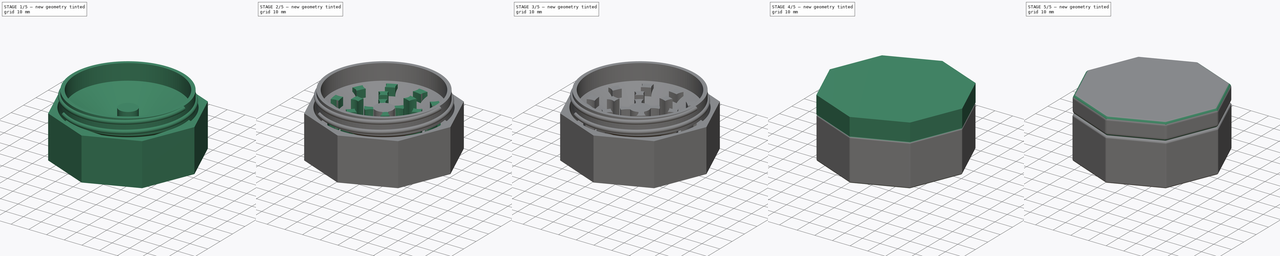
[diagram: build sequence overview — one tinted view per stage of 5, left to right]
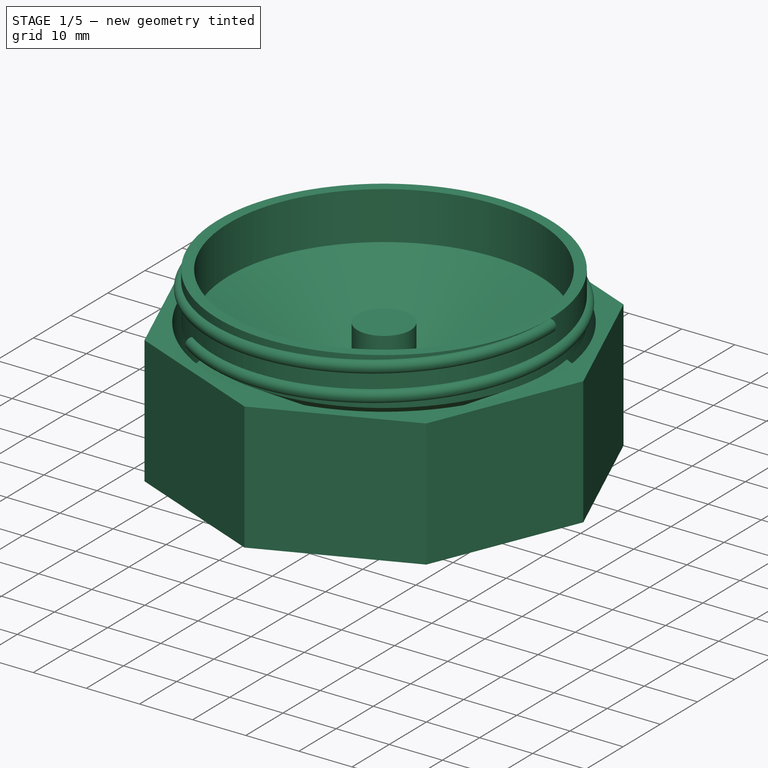
[diagram: stage 1 of 5 — iso view after this stage's code; geometry added in this stage tinted green]
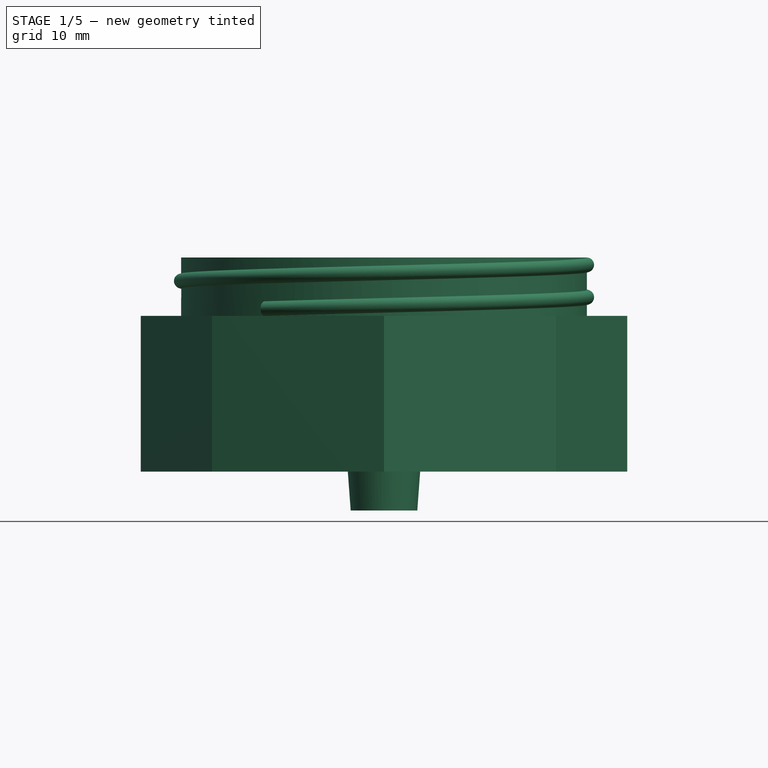
[diagram: stage 1 of 5 — front view after this stage's code; geometry added in this stage tinted green]
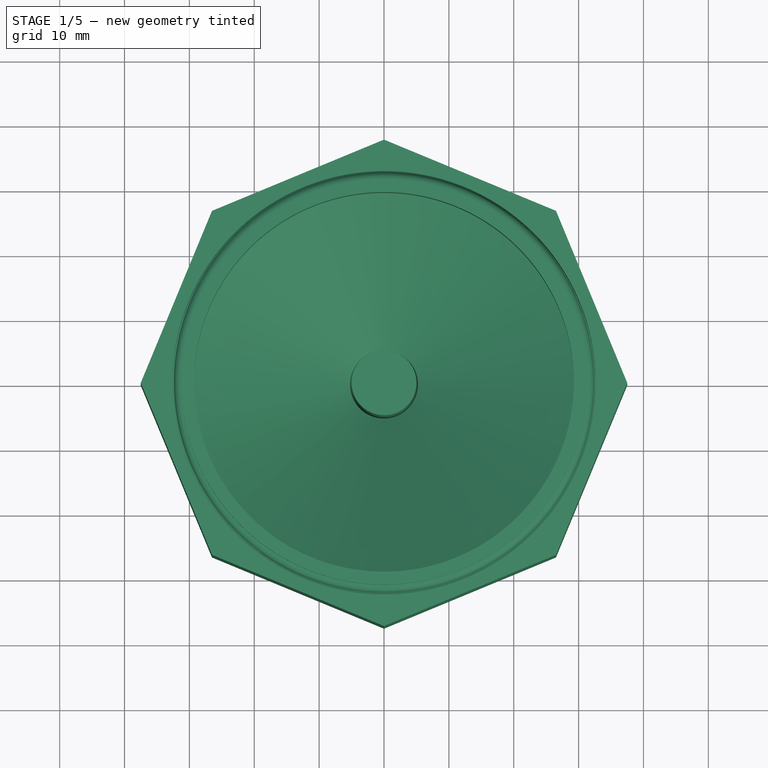
[diagram: stage 1 of 5 — top view after this stage's code; geometry added in this stage tinted green]
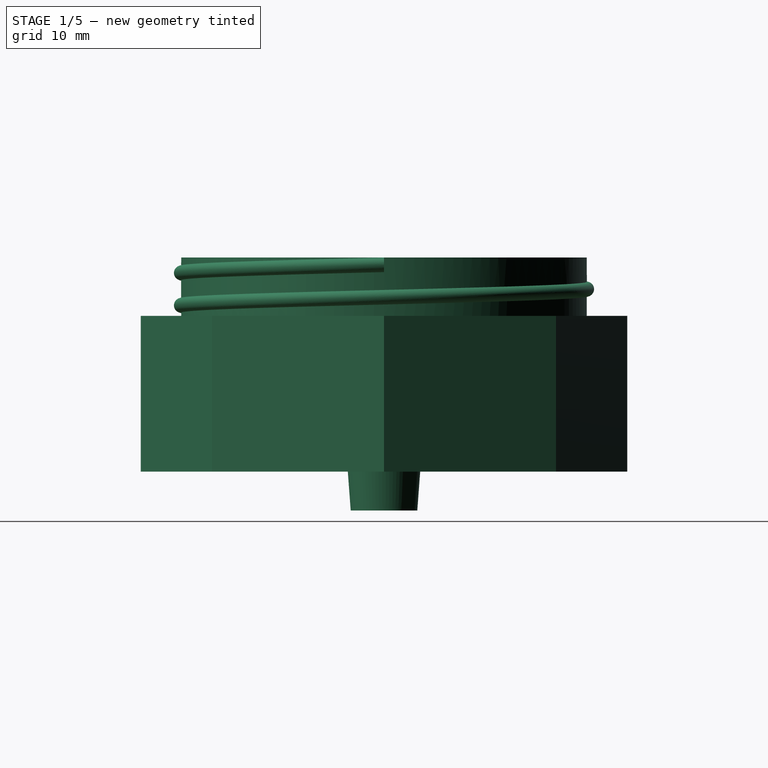
[diagram: stage 1 of 5 — right view after this stage's code; geometry added in this stage tinted green]
FCSTD DOCUMENT  (FreeCAD 2023.131R26244 +5365 (Git))
Label: Weed Cone Grinder
License: All rights reserved
LicenseURL: http://en.wikipedia.org/wiki/All_rights_reserved
objects: Sketcher::SketchObject×19, PartDesign::Pad×11, PartDesign::PolarPattern×9, PartDesign::Pocket×4, PartDesign::Body×4, PartDesign::Fillet×3, PartDesign::Revolution×2, PartDesign::AdditiveHelix×2, Spreadsheet::Sheet×1
note: 135 computed .brp shape members not serialized (recipe doc carries the construction recipe); baked Part::Feature solids carry a one-line shape summary decoded from their .brp

FEATURE [PartDesign::Body] Body  label="Top"
  AutoGroupSolids = false
  ClaimAllChildren = false
  ExportMode = 0
  Group = -> [Sketch,Pad,Sketch001,Pad001,Sketch002,Pocket,Sketch003,Pad002,PolarPattern,Sketch004,Pad003,PolarPattern001,Sketch005,Pad004,PolarPattern002,Fillet,Fillet001]
  InvalidShape = false
  Origin = -> Origin
  Tip = -> Fillet001
  TreeRank = 21
  ValidateShape = true
  _ExportChildren = -> [Pad,Pad001,Pocket,Pad002,PolarPattern,Pad003,PolarPattern001,Pad004,PolarPattern002,Fillet,Fillet001]
  _GroupVersion = 1
FEATURE [Sketcher::SketchObject] Sketch014
  ArcFitTolerance = 1e-06
  AttachmentSupport = -> [XY_Plane002]
  ExternalBSplineMaxDegree = 5
  ExternalBSplineTolerance = 0.0001
  FullyConstrained = true
  InternalTolerance = 1e-06
  InvalidShape = false
  MakeInternals = false
  MapMode = 5
  Support = -> [XY_Plane002]
  TreeRank = 79
  ValidateShape = true
  expr: Constraints[25] = <<Parameters>>.Diameter
  expr: Constraints[27] = <<Parameters>>.Top_Overlap_Outer_Diameter
  sketch-geometry (10):
    g0: LineSegment StartX=0 StartY=37.5 StartZ=0 EndX=-26.5165 EndY=26.5165 EndZ=0
    g1: LineSegment StartX=-26.5165 StartY=26.5165 StartZ=0 EndX=-37.5 EndY=3.6e-15 EndZ=0
    g2: LineSegment StartX=-37.5 StartY=3.6e-15 StartZ=0 EndX=-26.5165 EndY=-26.5165 EndZ=0
    g3: LineSegment StartX=-26.5165 StartY=-26.5165 StartZ=0 EndX=0 EndY=-37.5 EndZ=0
    g4: LineSegment StartX=0 StartY=-37.5 StartZ=0 EndX=26.5165 EndY=-26.5165 EndZ=0
    g5: LineSegment StartX=26.5165 StartY=-26.5165 StartZ=0 EndX=37.5 EndY=3.6e-15 EndZ=0
    g6: LineSegment StartX=37.5 StartY=3.6e-15 StartZ=0 EndX=26.5165 EndY=26.5165 EndZ=0
    g7: LineSegment StartX=26.5165 StartY=26.5165 StartZ=0 EndX=0 EndY=37.5 EndZ=0
    g8: Circle [constr] CenterX=0 CenterY=0 CenterZ=0 NormalX=0 NormalY=0 NormalZ=1 AngleXU=0 Radius=37.5
    g9: Circle CenterX=0 CenterY=0 CenterZ=0 NormalX=0 NormalY=0 NormalZ=1 AngleXU=0 Radius=32.6455
  constraints (22):
    c: Coincident(g0,g1)
    c: Coincident(g1,g2)
    c: Coincident(g2,g3)
    c: Coincident(g3,g4)
    c: Coincident(g4,g5)
    c: Coincident(g5,g6)
    c: Coincident(g6,g7)
    c: Coincident(g7,g0)
    c: Equal(g0, g1-g7) x7
    c: PointOnObject(g0,g8)
    c: PointOnObject(g1,g8)
    c: PointOnObject(g2,g8)
    c: PointOnObject(g3,g8)
    c: PointOnObject(g4,g8)
    c: PointOnObject(g5,g8)
    c: PointOnObject(g6,g8)
    c: PointOnObject(g7,g8)
    c: Coincident(g8,g-1)
    c: PointOnObject(g7,g-2)
    c: Diameter(g8) = 75
    c: Coincident(g9,g8)
    c: Diameter(g9) = 65.291
FEATURE [PartDesign::Pad] Pad009  label="Bottom Outer Profile"
  AddSubType = 0
  AlongSketchNormal = false
  AutoTaperInnerAngle = true
  CheckUpToFaceLimits = true
  ClaimChildren = false
  Direction = (0,0,1)
  Fit = 0
  FitJoin = 0
  InnerFit = 0
  InnerFitJoin = 0
  InvalidShape = false
  Length = 24
  Length2 = 100
  Linearize = true
  NewSolid = false
  Profile = -> Sketch014
  Reversed = true
  Suppress = false
  TaperInnerAngle = 0
  TaperInnerAngleRev = 0
  TreeRank = 80
  Type = 0
  ValidateShape = true
  _ProfileBasedVersion = 1
  expr: Length = <<Parameters>>.Bottom_Height + <<Parameters>>.Threaded_Height
FEATURE [Sketcher::SketchObject] Sketch015
  ArcFitTolerance = 1e-06
  AttachmentSupport = -> [XZ_Plane002]
  ExternalBSplineMaxDegree = 5
  ExternalBSplineTolerance = 0.0001
  FullyConstrained = true
  InternalTolerance = 1e-06
  InvalidShape = false
  MakeInternals = false
  MapMode = 5
  Placement = pos=(0,0,0) rot=(1,0,0;1.5708rad)
  Support = -> [XZ_Plane002]
  TreeRank = 81
  ValidateShape = true
  expr: Constraints[0] = <<Parameters>>.Bottom_Height
  expr: Constraints[1] = <<Parameters>>.Post_Diameter / 2
  expr: Constraints[2] = <<Parameters>>.Top_Overlap_Outer_Diameter / 2 + 0.01
  expr: Constraints[3] = <<Parameters>>.Post_Diameter / 2
  expr: Constraints[4] = <<Parameters>>.Bottom_Height + <<Parameters>>.Threaded_Height - <<Parameters>>.Wall_Thickness
  expr: Constraints[5] = <<Parameters>>.Bottom_Height + <<Parameters>>.Threaded_Height
  expr: Constraints[6] = <<Parameters>>.Bottom_Height + <<Parameters>>.Wall_Thickness
  expr: Constraints[7] = <<Parameters>>.Post_Diameter / 2
  expr: Constraints[8] = <<Parameters>>.Post_Diameter / 2
  expr: Constraints[9] = <<Parameters>>.Top_Overlap_Outer_Diameter / 2 + 0.01
  sketch-geometry (4):
    g0: ArcOfCircle CenterX=-5 CenterY=29.8016 CenterZ=0 NormalX=0 NormalY=0 NormalZ=1 AngleXU=0 Radius=51.8016 StartAngle=4.14921 EndAngle=4.71239
    g1: ArcOfCircle CenterX=-5 CenterY=27.8016 CenterZ=0 NormalX=0 NormalY=0 NormalZ=1 AngleXU=0 Radius=51.8016 StartAngle=4.14921 EndAngle=4.71239
    g2: LineSegment StartX=-32.6555 StartY=-14 StartZ=0 EndX=-32.6555 EndY=-16 EndZ=0
    g3: LineSegment StartX=-5 StartY=-22 StartZ=0 EndX=-5 EndY=-24 EndZ=0
  constraints (14):
    c: DistanceY(g0,g-1) = 14
    c: DistanceX(g0,g-1) = 5
    c: DistanceX(g0,g-1) = 32.6555
    c: DistanceX(g0,g-1) = 5
    c: DistanceY(g0,g-1) = 22
    c: DistanceY(g1,g-1) = 24
    c: DistanceY(g1,g-1) = 16
    c: DistanceX(g1,g-1) = 5
    c: DistanceX(g1,g-1) = 5
    c: DistanceX(g1,g-1) = 32.6555
    c: Coincident(g2,g0)
    c: Coincident(g2,g1)
    c: Coincident(g3,g0)
    c: Coincident(g3,g1)
FEATURE [PartDesign::Revolution] Revolution  label="Cone Bottom"
  AddSubType = 0
  Angle = 360
  Axis = (0,-2e-16,1)
  Base = (0,0,0)
  BaseFeature = -> Pad009
  ClaimChildren = false
  Fit = 0
  FitJoin = 0
  InnerFit = 0
  InnerFitJoin = 0
  InvalidShape = false
  Linearize = true
  NewSolid = false
  Profile = -> Sketch015
  ReferenceAxis = -> Sketch015 [V_Axis]
  Suppress = false
  TreeRank = 82
  ValidateShape = true
  _ProfileBasedVersion = 1
FEATURE [Sketcher::SketchObject] Sketch016
  ArcFitTolerance = 1e-06
  AttachmentSupport = -> [XY_Plane002]
  ExternalBSplineMaxDegree = 5
  ExternalBSplineTolerance = 0.0001
  FullyConstrained = true
  InternalTolerance = 1e-06
  InvalidShape = false
  MakeInternals = false
  MapMode = 5
  Support = -> [XY_Plane002]
  TreeRank = 83
  ValidateShape = true
  expr: Constraints[1] = <<Parameters>>.Post_Diameter
  sketch-geometry (1):
    g0: Circle CenterX=0 CenterY=0 CenterZ=0 NormalX=0 NormalY=0 NormalZ=1 AngleXU=0 Radius=5
  constraints (2):
    c: Coincident(g0,g-1)
    c: Diameter(g0) = 10
FEATURE [PartDesign::Pad] Pad010  label="Center Post"
  AddSubType = 0
  AlongSketchNormal = false
  AutoTaperInnerAngle = true
  BaseFeature = -> Revolution
  CheckUpToFaceLimits = true
  ClaimChildren = false
  Direction = (0,0,1)
  Fit = 0
  FitJoin = 0
  InnerFit = 0
  InnerFitJoin = 0
  InvalidShape = false
  Length = 24
  Length2 = 100
  Linearize = true
  NewSolid = false
  Profile = -> Sketch016
  Reversed = true
  Suppress = false
  TaperInnerAngle = 0
  TaperInnerAngleRev = 0
  TreeRank = 84
  Type = 0
  ValidateShape = true
  _ProfileBasedVersion = 1
  expr: Length = <<Parameters>>.Bottom_Height + <<Parameters>>.Threaded_Height
FEATURE [PartDesign::Body] Body002  label="Bottom"
  AutoGroupSolids = false
  ClaimAllChildren = false
  ExportMode = 0
  Group = -> [Sketch014,Pad009,Sketch015,Revolution,Sketch016,Pad010,Sketch017,Pad011,PolarPattern006,Sketch018,Pad012,PolarPattern007,Sketch019,Pad013,PolarPattern008,Sketch020,Pocket004,PolarPattern009,Sketch021,Pocket005,PolarPattern010,Sketch022,Pocket006,PolarPattern011,Sketch023,Helix001,Fillet002]
  InvalidShape = false
  Origin = -> Origin002
  Tip = -> Fillet002
  TreeRank = 78
  ValidateShape = true
  _ExportChildren = -> [Pad009,Revolution,Pad010,Pad011,PolarPattern006,Pad012,PolarPattern007,Pad013,PolarPattern008,Pocket004,PolarPattern009,Pocket005,PolarPattern010,Pocket006,PolarPattern011,Helix001,Fillet002]
  _GroupVersion = 1
FEATURE [Sketcher::SketchObject] Sketch024
  ArcFitTolerance = 1e-06
  AttachmentSupport = -> [XY_Plane003]
  ExternalBSplineMaxDegree = 5
  ExternalBSplineTolerance = 0.0001
  FullyConstrained = true
  InternalTolerance = 1e-06
  InvalidShape = false
  MakeInternals = false
  MapMode = 5
  Support = -> [XY_Plane003]
  TreeRank = 117
  ValidateShape = true
  expr: Constraints[2] = <<Parameters>>.Top_Overlap_Outer_Diameter - <<Parameters>>.Thread_Height - 2 * <<Parameters>>.Wall_Thickness - 0.5
  expr: Constraints[3] = <<Parameters>>.Top_Overlap_Outer_Diameter - <<Parameters>>.Thread_Height - 0.5
  sketch-geometry (2):
    g0: Circle CenterX=0 CenterY=0 CenterZ=0 NormalX=0 NormalY=0 NormalZ=1 AngleXU=0 Radius=29.2705
    g1: Circle CenterX=0 CenterY=0 CenterZ=0 NormalX=0 NormalY=0 NormalZ=1 AngleXU=0 Radius=31.2705
  constraints (4):
    c: Coincident(g0,g-1)
    c: Coincident(g1,g0)
    c: Diameter(g0) = 58.541
    c: Diameter(g1) = 62.541
FEATURE [PartDesign::Pad] Pad014  label="Threaded Ring"
  AddSubType = 0
  AlongSketchNormal = false
  AutoTaperInnerAngle = true
  CheckUpToFaceLimits = true
  ClaimChildren = false
  Direction = (0,0,1)
  Fit = 0
  FitJoin = 0
  InnerFit = 0
  InnerFitJoin = 0
  InvalidShape = false
  Length = 9
  Length2 = 100
  Linearize = true
  NewSolid = false
  Profile = -> Sketch024
  Suppress = false
  TaperInnerAngle = 0
  TaperInnerAngleRev = 0
  TreeRank = 118
  Type = 0
  ValidateShape = true
  _ProfileBasedVersion = 1
  expr: Length = <<Parameters>>.Threaded_Height - 1
FEATURE [Sketcher::SketchObject] Sketch025
  ArcFitTolerance = 1e-06
  AttachmentSupport = -> [XZ_Plane003]
  ExternalBSplineMaxDegree = 5
  ExternalBSplineTolerance = 0.0001
  FullyConstrained = true
  InternalTolerance = 1e-06
  InvalidShape = false
  MakeInternals = false
  MapMode = 5
  Placement = pos=(0,0,0) rot=(1,0,0;1.5708rad)
  Support = -> [XZ_Plane003]
  TreeRank = 119
  ValidateShape = true
  expr: Constraints[1] = <<Parameters>>.Thread_Height
  expr: Constraints[2] = (<<Parameters>>.Top_Overlap_Outer_Diameter - <<Parameters>>.Thread_Height - 0.5) / 2 - 0.01
  expr: Constraints[3] = <<Parameters>>.Threaded_Height - 1
  sketch-geometry (2):
    g0: LineSegment StartX=31.2605 StartY=9 StartZ=0 EndX=31.2605 EndY=6.75 EndZ=0
    g1: ArcOfCircle CenterX=31.2605 CenterY=7.875 CenterZ=0 NormalX=0 NormalY=0 NormalZ=1 AngleXU=0 Radius=1.125 StartAngle=4.71239 EndAngle=7.85398
  constraints (7):
    c: Vertical(g0)
    c: DistanceY(g0,g0) = 2.25
    c: DistanceX(g-1,g0) = 31.2605
    c: DistanceY(g-1,g0) = 9
    c: Coincident(g1,g0)
    c: Coincident(g1,g0)
    c: PointOnObject(g1,g0)
FEATURE [PartDesign::AdditiveHelix] Helix  label="Threads on Ring"
  AddSubType = 0
  Angle = 0
  Axis = (0,2e-16,1)
  Base = (0,0,0)
  BaseFeature = -> Pad014
  ClaimChildren = false
  Fit = 0
  FitJoin = 0
  Growth = 0
  HasBeenEdited = true
  Height = 6.75
  InnerFit = 0
  InnerFitJoin = 0
  InvalidShape = false
  LeftHanded = false
  Linearize = true
  Mode = 0
  NewSolid = false
  Outside = false
  Pitch = 5
  Profile = -> Sketch025
  ReferenceAxis = -> Sketch025 [V_Axis]
  Reversed = true
  Suppress = false
  TreeRank = 120
  Turns = 1.35
  ValidateShape = true
  _ProfileBasedVersion = 1
  expr: Height = <<Parameters>>.Threaded_Height - <<Parameters>>.Thread_Height - 1
  expr: Pitch = <<Parameters>>.Thread_Pitch
FEATURE [Sketcher::SketchObject] Sketch026
  ArcFitTolerance = 1e-06
  AttachmentSupport = -> [XZ_Plane003]
  ExternalBSplineMaxDegree = 5
  ExternalBSplineTolerance = 0.0001
  FullyConstrained = true
  InternalTolerance = 1e-06
  InvalidShape = false
  MakeInternals = false
  MapMode = 5
  Placement = pos=(0,0,0) rot=(1,0,0;1.5708rad)
  Support = -> [XZ_Plane003]
  TreeRank = 121
  ValidateShape = true
  expr: Constraints[0] = Spreadsheet.Cone_Insert_Height
  expr: Constraints[1] = <<Parameters>>.Cone_Angle / 2
  expr: Constraints[5] = (<<Parameters>>.Top_Overlap_Outer_Diameter - <<Parameters>>.Thread_Height - 0.5) / 2
  expr: Constraints[6] = <<Parameters>>.Cone_Collection_Height
  sketch-geometry (6):
    g0: LineSegment StartX=-5.13531 StartY=-30 StartZ=0 EndX=-6.25 EndY=-15 EndZ=0
    g1: LineSegment StartX=-31.2705 StartY=0 StartZ=0 EndX=-6.25 EndY=-15 EndZ=0
    g2: LineSegment StartX=-29.7705 StartY=0 StartZ=0 EndX=-5.25 EndY=-14.7002 EndZ=0
    g3: LineSegment StartX=-5.25 StartY=-14.7002 StartZ=0 EndX=-4.13531 EndY=-30 EndZ=0
    g4: LineSegment StartX=-4.13531 StartY=-30 StartZ=0 EndX=-5.13531 EndY=-30 EndZ=0
    g5: LineSegment StartX=-31.2705 StartY=0 StartZ=0 EndX=-29.7705 EndY=0 EndZ=0
  constraints (18):
    c: DistanceY(g0,g0) = 15
    c: Angle(g-2,g0) = 0.0741765
    c: DistanceX(g0,g-1) = 6.25
    c: PointOnObject(g1,g-1)
    c: Coincident(g1,g0)
    c: DistanceX(g1,g-1) = 31.2705
    c: DistanceY(g0,g-1) = 15
    c: PointOnObject(g2,g-1)
    c: DistanceX(g1,g2) = 1.5
    c: DistanceX(g0,g2) = 1
    c: Coincident(g3,g2)
    c: Coincident(g4,g3)
    c: Horizontal(g4)
    c: DistanceX(g0,g3) = 1
    c: Coincident(g4,g0)
    c: Coincident(g5,g1)
    c: Coincident(g5,g2)
    c: Parallel(g2,g1)
FEATURE [PartDesign::Revolution] Revolution001  label="Cone001"
  AddSubType = 0
  Angle = 360
  Axis = (0,2e-16,1)
  Base = (0,0,0)
  BaseFeature = -> Helix
  ClaimChildren = false
  Fit = 0
  FitJoin = 0
  InnerFit = 0
  InnerFitJoin = 0
  InvalidShape = false
  Linearize = true
  NewSolid = false
  Profile = -> Sketch026
  ReferenceAxis = -> Sketch026 [V_Axis]
  Suppress = false
  TreeRank = 122
  ValidateShape = true
  _ProfileBasedVersion = 1
FEATURE [PartDesign::Body] Body003  label="Cone"
  AutoGroupSolids = false
  ClaimAllChildren = false
  ExportMode = 0
  Group = -> [Sketch024,Pad014,Sketch025,Helix,Sketch026,Revolution001]
  InvalidShape = false
  Origin = -> Origin003
  Tip = -> Revolution001
  TreeRank = 116
  ValidateShape = true
  _ExportChildren = -> [Pad014,Helix,Revolution001]
  _GroupVersion = 1
FEATURE [PartDesign::Body] Body004  label="Bottom Take 3"
  AutoGroupSolids = false
  ClaimAllChildren = false
  ExportMode = 0
  InvalidShape = false
  Origin = -> Origin004
  TreeRank = 115
  ValidateShape = true
  _GroupVersion = 1
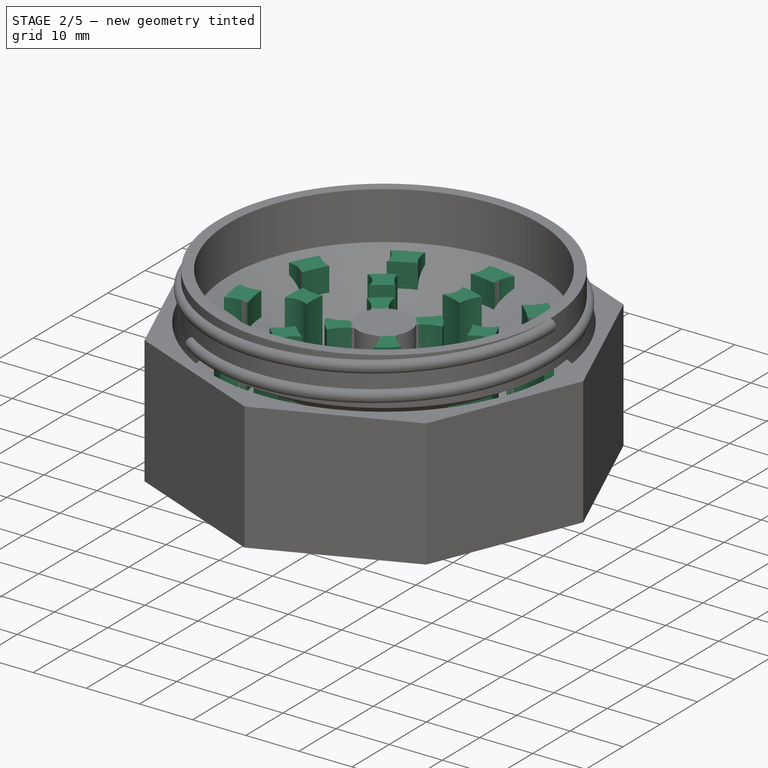
[diagram: stage 2 of 5 — iso view after this stage's code; geometry added in this stage tinted green]
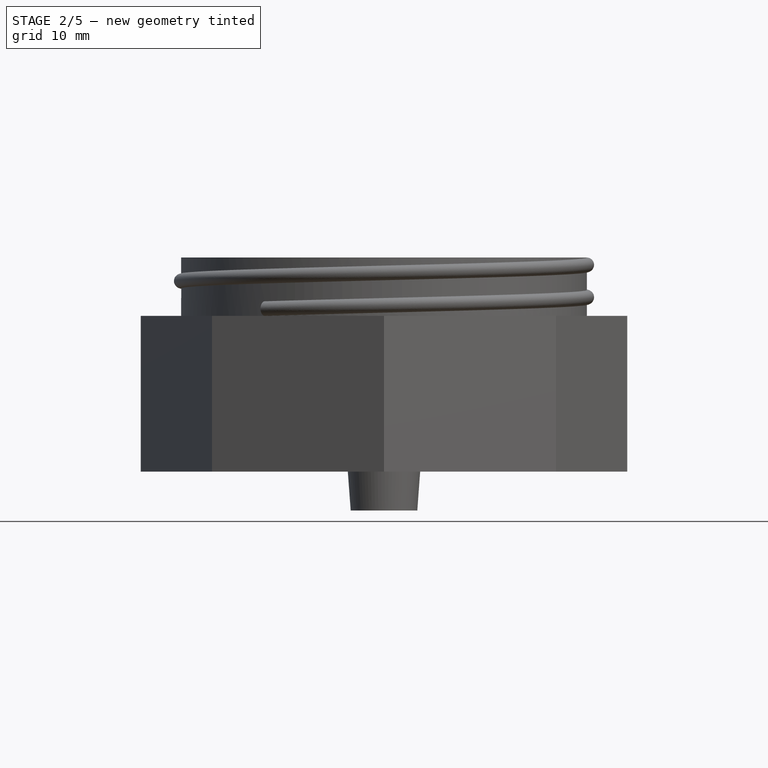
[diagram: stage 2 of 5 — front view after this stage's code; geometry added in this stage tinted green]
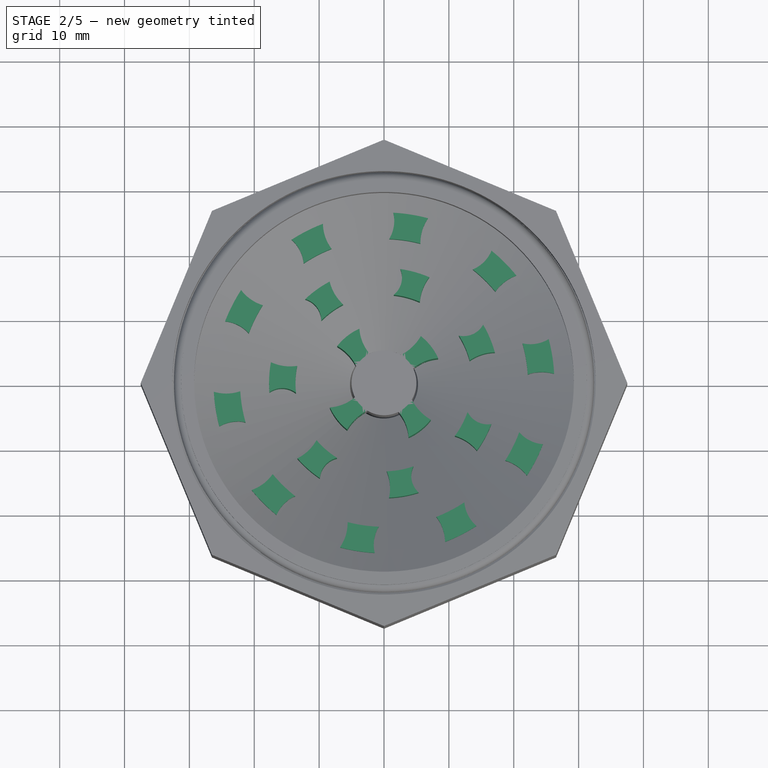
[diagram: stage 2 of 5 — top view after this stage's code; geometry added in this stage tinted green]
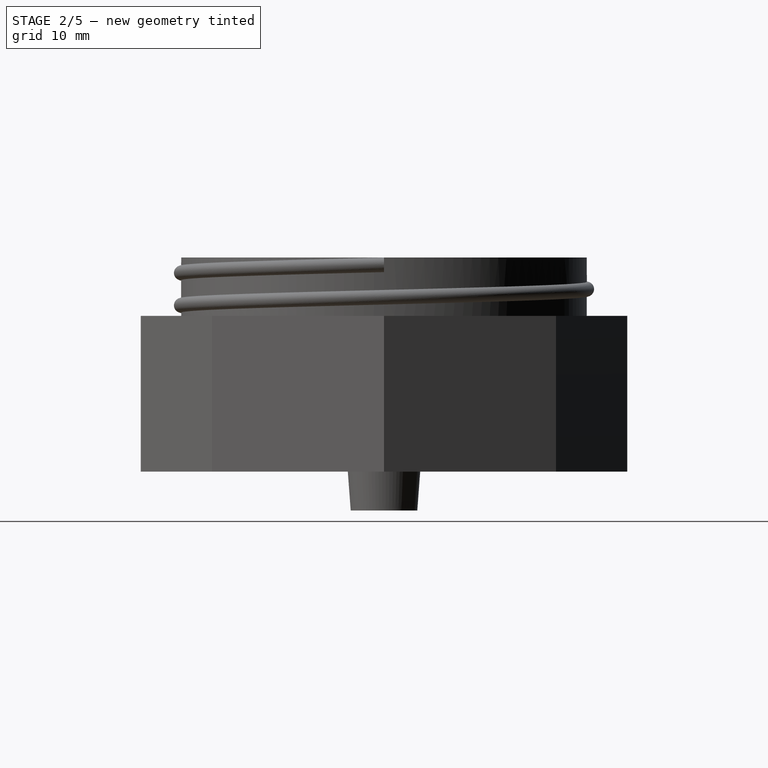
[diagram: stage 2 of 5 — right view after this stage's code; geometry added in this stage tinted green]
FEATURE [Sketcher::SketchObject] Sketch017
  ArcFitTolerance = 1e-06
  AttachmentSupport = -> [Pad010]
  ExternalBSplineMaxDegree = 5
  ExternalBSplineTolerance = 0.0001
  FullyConstrained = false
  InternalTolerance = 1e-06
  InvalidShape = false
  MakeInternals = false
  MapMode = 5
  Support = -> [Pad010]
  TreeRank = 85
  ValidateShape = true
  expr: Constraints[2] = <<Parameters>>.Bottom_Outer_Diameter_Max
  expr: Constraints[3] = <<Parameters>>.Bottom_Outer_Diameter_Min
  sketch-geometry (4):
    g0: ArcOfCircle CenterX=0 CenterY=0 CenterZ=0 NormalX=0 NormalY=0 NormalZ=1 AngleXU=0 Radius=26.2712 StartAngle=1.30898 EndAngle=1.51637
    g1: ArcOfCircle CenterX=0 CenterY=0 CenterZ=0 NormalX=0 NormalY=0 NormalZ=1 AngleXU=0 Radius=22.197 StartAngle=1.31507 EndAngle=1.53473
    g2: ArcOfCircle CenterX=-3.81222 CenterY=24.9724 CenterZ=0 NormalX=0 NormalY=0 NormalZ=1 AngleXU=0 Radius=5.39072 StartAngle=5.73923 EndAngle=6.51909
    g3: ArcOfCircle CenterX=12.1887 CenterY=21.6082 CenterZ=0 NormalX=0 NormalY=0 NormalZ=1 AngleXU=0 Radius=6.57534 StartAngle=2.53142 EndAngle=3.16184
  constraints (8):
    c: Coincident(g0,g-1)
    c: Coincident(g1,g0)
    c: Diameter(g0) = 52.5425
    c: Diameter(g1) = 44.394
    c: Coincident(g2,g0)
    c: Coincident(g2,g1)
    c: Coincident(g3,g0)
    c: Coincident(g3,g1)
FEATURE [PartDesign::Pad] Pad011  label="Bottom Outer Tooth Profile"
  AddSubType = 0
  AlongSketchNormal = false
  AutoTaperInnerAngle = true
  BaseFeature = -> Pad010
  CheckUpToFaceLimits = true
  ClaimChildren = false
  Direction = (0,0,1)
  Fit = 0
  FitJoin = 0
  InnerFit = 0
  InnerFitJoin = 0
  InvalidShape = false
  Length = 15
  Length2 = 100
  Linearize = true
  NewSolid = false
  Profile = -> Sketch017
  Reversed = true
  Suppress = false
  TaperInnerAngle = 0
  TaperInnerAngleRev = 0
  TreeRank = 86
  Type = 0
  ValidateShape = true
  _ProfileBasedVersion = 1
  expr: Length = <<Parameters>>.Bottom_Height + <<Parameters>>.Threaded_Height - 9
FEATURE [PartDesign::PolarPattern] PolarPattern006  label="Bottom Outer Tooth Ring"
  AddSubType = 0
  Angle = 360
  Axis = -> Sketch017 [N_Axis]
  BaseFeature = -> Pad011
  CopyShape = false
  InvalidShape = false
  NewSolid = false
  Occurrences = 10
  OriginalSubs = -> [Pad011]
  Originals = -> [Pad011]
  ParallelTransform = true
  SubTransform = true
  Suppress = false
  TreeRank = 87
  ValidateShape = true
  _Version = 3
FEATURE [Sketcher::SketchObject] Sketch018
  ArcFitTolerance = 1e-06
  AttachmentSupport = -> [PolarPattern006]
  ExternalBSplineMaxDegree = 5
  ExternalBSplineTolerance = 0.0001
  FullyConstrained = false
  InternalTolerance = 1e-06
  InvalidShape = false
  MakeInternals = false
  MapMode = 5
  Support = -> [PolarPattern006]
  TreeRank = 88
  ValidateShape = true
  expr: Constraints[2] = <<Parameters>>.Bottom_Middle_Diameter_Max
  expr: Constraints[3] = <<Parameters>>.Bottom_Middle_Diameter_Min
  sketch-geometry (4):
    g0: ArcOfCircle CenterX=0 CenterY=0 CenterZ=0 NormalX=0 NormalY=0 NormalZ=1 AngleXU=0 Radius=17.7227 StartAngle=1.16583 EndAngle=1.42818
    g1: ArcOfCircle CenterX=0 CenterY=0 CenterZ=0 NormalX=0 NormalY=0 NormalZ=1 AngleXU=0 Radius=13.6485 StartAngle=1.15373 EndAngle=1.4606
    g2: ArcOfCircle CenterX=-0.657032 CenterY=16.2369 CenterZ=0 NormalX=0 NormalY=0 NormalZ=1 AngleXU=0 Radius=3.43401 StartAngle=5.39193 EndAngle=6.6733
    g3: ArcOfCircle CenterX=12.5298 CenterY=11.9901 CenterZ=0 NormalX=0 NormalY=0 NormalZ=1 AngleXU=0 Radius=7.01805 StartAngle=2.48227 EndAngle=3.07194
  constraints (8):
    c: Coincident(g0,g-1)
    c: Coincident(g1,g0)
    c: Diameter(g0) = 35.4455
    c: Diameter(g1) = 27.297
    c: Coincident(g2,g0)
    c: Coincident(g2,g1)
    c: Coincident(g3,g0)
    c: Coincident(g3,g1)
FEATURE [PartDesign::Pad] Pad012  label="Bottom Middle Tooth Profile"
  AddSubType = 0
  AlongSketchNormal = false
  AutoTaperInnerAngle = true
  BaseFeature = -> PolarPattern006
  CheckUpToFaceLimits = true
  ClaimChildren = false
  Direction = (0,0,1)
  Fit = 0
  FitJoin = 0
  InnerFit = 0
  InnerFitJoin = 0
  InvalidShape = false
  Length = 21
  Length2 = 100
  Linearize = true
  NewSolid = false
  Profile = -> Sketch018
  Reversed = true
  Suppress = false
  TaperInnerAngle = 0
  TaperInnerAngleRev = 0
  TreeRank = 89
  Type = 0
  ValidateShape = true
  _ProfileBasedVersion = 1
  expr: Length = <<Parameters>>.Bottom_Height + <<Parameters>>.Threaded_Height - 3
FEATURE [PartDesign::PolarPattern] PolarPattern007  label="Bottom Middle Tooth Ring"
  AddSubType = 0
  Angle = 360
  Axis = -> Sketch018 [N_Axis]
  BaseFeature = -> Pad012
  CopyShape = false
  InvalidShape = false
  NewSolid = false
  Occurrences = 7
  OriginalSubs = -> [Pad012]
  Originals = -> [Pad012]
  ParallelTransform = true
  SubTransform = true
  Suppress = false
  TreeRank = 90
  ValidateShape = true
  _Version = 3
FEATURE [Sketcher::SketchObject] Sketch019
  ArcFitTolerance = 1e-06
  AttachmentSupport = -> [PolarPattern007]
  ExternalBSplineMaxDegree = 5
  ExternalBSplineTolerance = 0.0001
  FullyConstrained = false
  InternalTolerance = 1e-06
  InvalidShape = false
  MakeInternals = false
  MapMode = 5
  Support = -> [PolarPattern007]
  TreeRank = 91
  ValidateShape = true
  expr: Constraints[2] = <<Parameters>>.Bottom_Inner_Diameter_Max
  expr: Constraints[3] = <<Parameters>>.Bottom_Inner_Diameter_Min
  sketch-geometry (4):
    g0: ArcOfCircle CenterX=0 CenterY=0 CenterZ=0 NormalX=0 NormalY=0 NormalZ=1 AngleXU=0 Radius=9.17425 StartAngle=0.426279 EndAngle=0.903508
    g1: ArcOfCircle CenterX=0 CenterY=0 CenterZ=0 NormalX=0 NormalY=0 NormalZ=1 AngleXU=0 Radius=4.95 StartAngle=0.457633 EndAngle=1.03572
    g2: ArcOfCircle CenterX=-0.69868 CenterY=10.8659 CenterZ=0 NormalX=0 NormalY=0 NormalZ=1 AngleXU=0 Radius=7.35174 StartAngle=5.16617 EndAngle=5.76216
    g3: ArcOfCircle CenterX=8.79086 CenterY=-2.84052 CenterZ=0 NormalX=0 NormalY=0 NormalZ=1 AngleXU=0 Radius=6.64836 StartAngle=1.63667 EndAngle=2.28409
  constraints (8):
    c: Coincident(g0,g-1)
    c: Coincident(g1,g0)
    c: Diameter(g0) = 18.3485
    c: Diameter(g1) = 9.9
    c: Coincident(g2,g0)
    c: Coincident(g2,g1)
    c: Coincident(g3,g0)
    c: Coincident(g3,g1)
FEATURE [PartDesign::Pad] Pad013  label="Bottom Inner Tooth Profile"
  AddSubType = 0
  AlongSketchNormal = false
  AutoTaperInnerAngle = true
  BaseFeature = -> PolarPattern007
  CheckUpToFaceLimits = true
  ClaimChildren = false
  Direction = (0,0,1)
  Fit = 0
  FitJoin = 0
  InnerFit = 0
  InnerFitJoin = 0
  InvalidShape = false
  Length = 23
  Length2 = 100
  Linearize = true
  NewSolid = false
  Profile = -> Sketch019
  Reversed = true
  Suppress = false
  TaperInnerAngle = 0
  TaperInnerAngleRev = 0
  TreeRank = 92
  Type = 0
  ValidateShape = true
  _ProfileBasedVersion = 1
  expr: Length = <<Parameters>>.Bottom_Height + <<Parameters>>.Threaded_Height - 1
FEATURE [PartDesign::PolarPattern] PolarPattern008  label="Bottom Inner Tooth Ring"
  AddSubType = 0
  Angle = 360
  Axis = -> Sketch019 [N_Axis]
  BaseFeature = -> Pad013
  CopyShape = false
  InvalidShape = false
  NewSolid = false
  Occurrences = 4
  OriginalSubs = -> [Pad013]
  Originals = -> [Pad013]
  ParallelTransform = true
  SubTransform = true
  Suppress = false
  TreeRank = 93
  ValidateShape = true
  _Version = 3
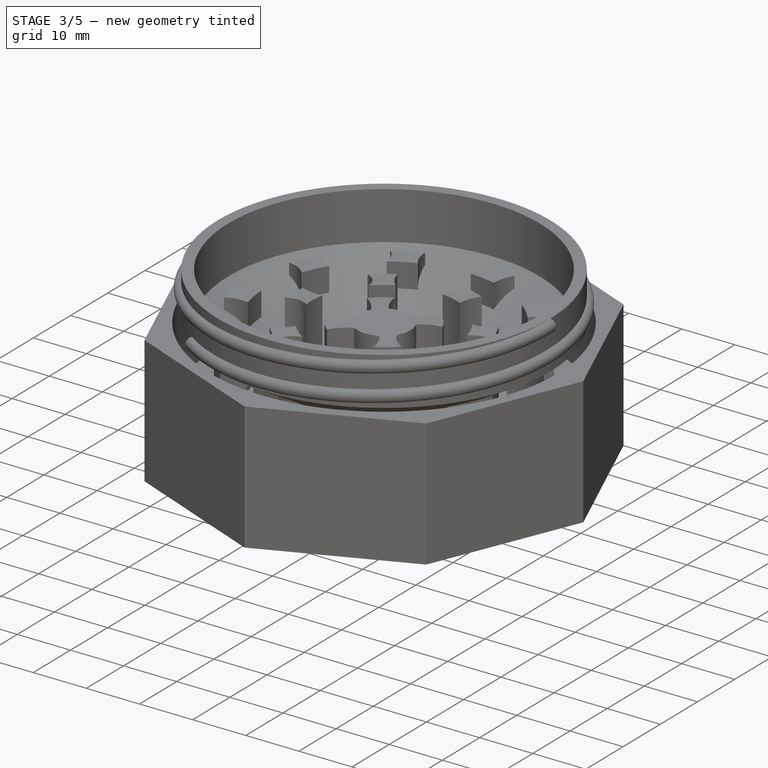
[diagram: stage 3 of 5 — iso view after this stage's code; geometry added in this stage tinted green]
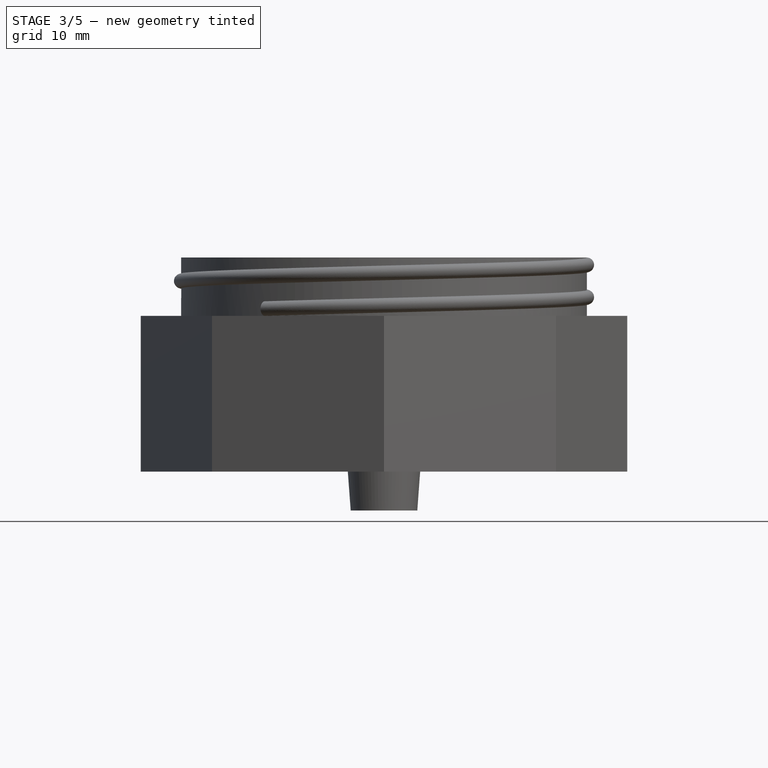
[diagram: stage 3 of 5 — front view after this stage's code; geometry added in this stage tinted green]
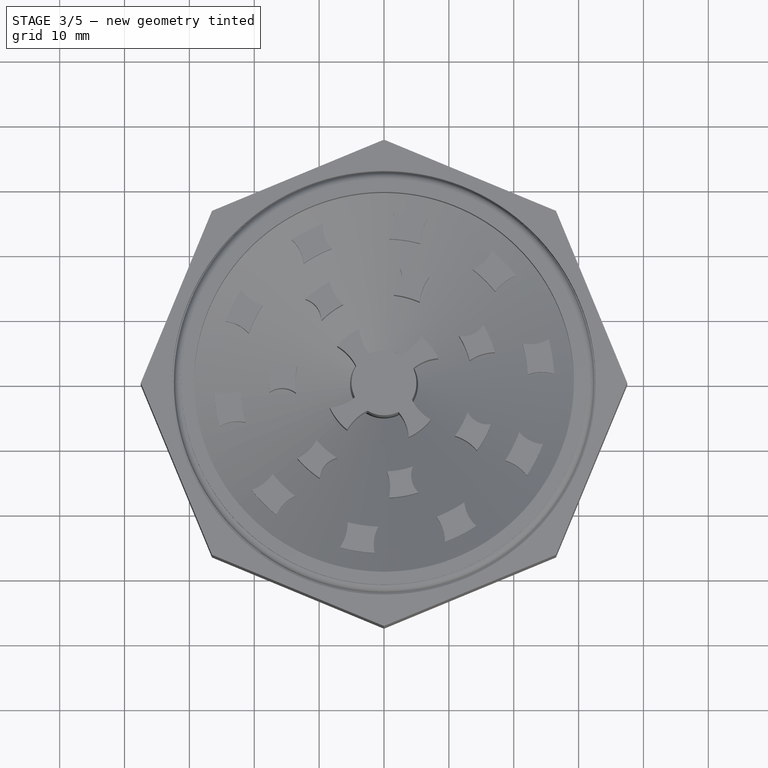
[diagram: stage 3 of 5 — top view after this stage's code; geometry added in this stage tinted green]
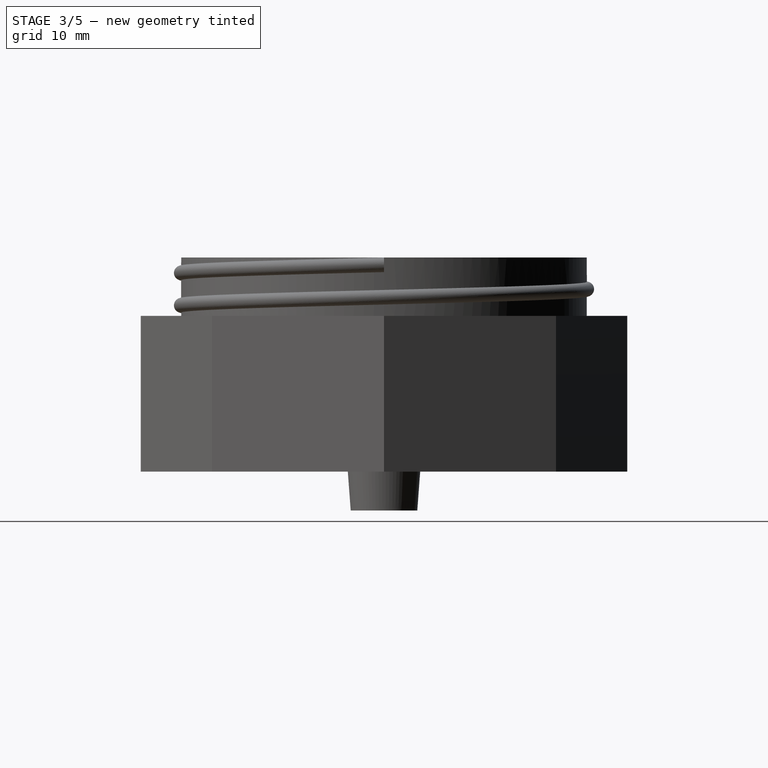
[diagram: stage 3 of 5 — right view after this stage's code; geometry added in this stage tinted green]
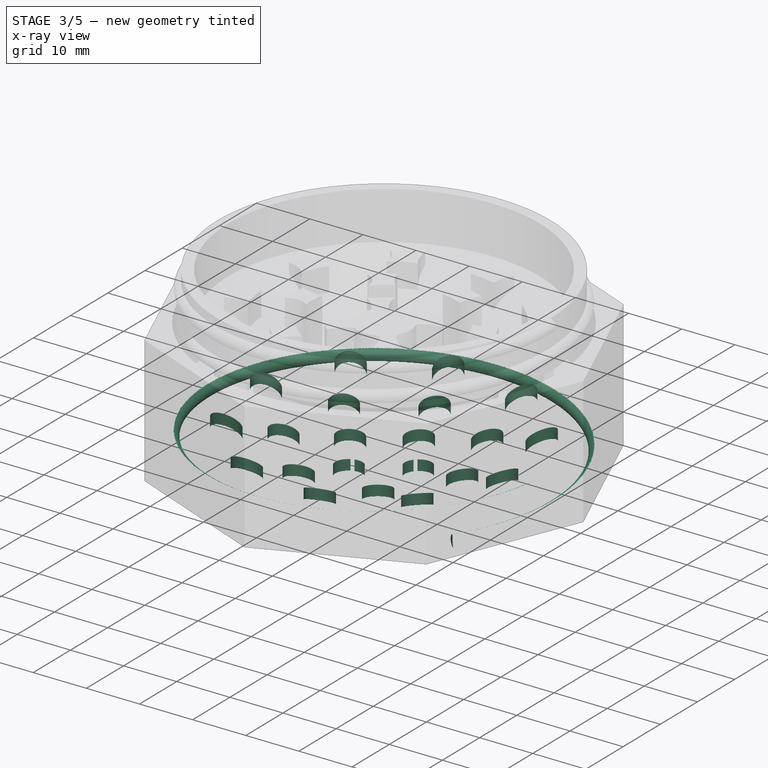
[diagram: stage 3 of 5 — x-ray composite at the iso view; earlier geometry ghosted, this stage's added geometry solid]
FEATURE [Sketcher::SketchObject] Sketch020
  ArcFitTolerance = 1e-06
  AttachmentSupport = -> [PolarPattern008]
  ExternalBSplineMaxDegree = 5
  ExternalBSplineTolerance = 0.0001
  FullyConstrained = false
  InternalTolerance = 1e-06
  InvalidShape = false
  MakeInternals = false
  MapMode = 5
  Support = -> [PolarPattern008]
  TreeRank = 94
  ValidateShape = true
  expr: Constraints[0] = <<Parameters>>.Hole_Diameter
  sketch-geometry (1):
    g0: Circle CenterX=10.283 CenterY=22.1731 CenterZ=0 NormalX=0 NormalY=0 NormalZ=1 AngleXU=0 Radius=2.5
  constraints (1):
    c: Diameter(g0) = 5
FEATURE [PartDesign::Pocket] Pocket004  label="Bottom Outer Hole Profile"
  AddSubType = 1
  AutoTaperInnerAngle = true
  BaseFeature = -> PolarPattern008
  CheckUpToFaceLimits = true
  ClaimChildren = false
  Fit = 0
  FitJoin = 0
  InnerFit = 0
  InnerFitJoin = 0
  InvalidShape = false
  Length = 5
  Length2 = 100
  Linearize = true
  NewSolid = false
  Profile = -> Sketch020
  Suppress = false
  TaperInnerAngle = 0
  TaperInnerAngleRev = 0
  TreeRank = 95
  Type = 1
  ValidateShape = true
  _ProfileBasedVersion = 1
  _Version = 1
FEATURE [PartDesign::PolarPattern] PolarPattern009  label="Bottom Outer Hole Ring"
  AddSubType = 0
  Angle = 360
  Axis = -> Sketch020 [N_Axis]
  BaseFeature = -> Pocket004
  CopyShape = false
  InvalidShape = false
  NewSolid = false
  Occurrences = 10
  OriginalSubs = -> [Pocket004]
  Originals = -> [Pocket004]
  ParallelTransform = true
  SubTransform = true
  Suppress = false
  TreeRank = 96
  ValidateShape = true
  _Version = 3
FEATURE [Sketcher::SketchObject] Sketch021
  ArcFitTolerance = 1e-06
  AttachmentSupport = -> [PolarPattern009]
  ExternalBSplineMaxDegree = 5
  ExternalBSplineTolerance = 0.0001
  FullyConstrained = false
  InternalTolerance = 1e-06
  InvalidShape = false
  MakeInternals = false
  MapMode = 5
  Support = -> [PolarPattern009]
  TreeRank = 97
  ValidateShape = true
  expr: Constraints[0] = <<Parameters>>.Hole_Diameter
  sketch-geometry (1):
    g0: Circle CenterX=11.4716 CenterY=11.3403 CenterZ=0 NormalX=0 NormalY=0 NormalZ=1 AngleXU=0 Radius=2.5
  constraints (1):
    c: Diameter(g0) = 5
FEATURE [PartDesign::Pocket] Pocket005  label="Bottom Middle Hole Profile"
  AddSubType = 1
  AutoTaperInnerAngle = true
  BaseFeature = -> PolarPattern009
  CheckUpToFaceLimits = true
  ClaimChildren = false
  Fit = 0
  FitJoin = 0
  InnerFit = 0
  InnerFitJoin = 0
  InvalidShape = false
  Length = 5
  Length2 = 100
  Linearize = true
  NewSolid = false
  Profile = -> Sketch021
  Suppress = false
  TaperInnerAngle = 0
  TaperInnerAngleRev = 0
  TreeRank = 98
  Type = 1
  ValidateShape = true
  _ProfileBasedVersion = 1
  _Version = 1
FEATURE [PartDesign::PolarPattern] PolarPattern010  label="Bottom Middle Hole Ring"
  AddSubType = 0
  Angle = 360
  Axis = -> Sketch021 [N_Axis]
  BaseFeature = -> Pocket005
  CopyShape = false
  InvalidShape = false
  NewSolid = false
  Occurrences = 7
  OriginalSubs = -> [Pocket005]
  Originals = -> [Pocket005]
  ParallelTransform = true
  SubTransform = true
  Suppress = false
  TreeRank = 99
  ValidateShape = true
  _Version = 3
FEATURE [Sketcher::SketchObject] Sketch022
  ArcFitTolerance = 1e-06
  AttachmentSupport = -> [PolarPattern010]
  ExternalBSplineMaxDegree = 5
  ExternalBSplineTolerance = 0.0001
  FullyConstrained = false
  InternalTolerance = 1e-06
  InvalidShape = false
  MakeInternals = false
  MapMode = 5
  Support = -> [PolarPattern010]
  TreeRank = 100
  ValidateShape = true
  expr: Constraints[0] = <<Parameters>>.Hole_Diameter
  expr: Constraints[1] = (<<Parameters>>.Hole_Diameter + <<Parameters>>.Post_Diameter) / 2
  sketch-geometry (1):
    g0: Circle CenterX=1.39559 CenterY=7.36901 CenterZ=0 NormalX=0 NormalY=0 NormalZ=1 AngleXU=0 Radius=2.5
  constraints (2):
    c: Diameter(g0) = 5
    c: Distance(g-1,g0) = 7.5
FEATURE [PartDesign::Pocket] Pocket006  label="Bottom Inner Hole Profile"
  AddSubType = 1
  AutoTaperInnerAngle = true
  BaseFeature = -> PolarPattern010
  CheckUpToFaceLimits = true
  ClaimChildren = false
  Fit = 0
  FitJoin = 0
  InnerFit = 0
  InnerFitJoin = 0
  InvalidShape = false
  Length = 5
  Length2 = 100
  Linearize = true
  NewSolid = false
  Profile = -> Sketch022
  Suppress = false
  TaperInnerAngle = 0
  TaperInnerAngleRev = 0
  TreeRank = 101
  Type = 1
  ValidateShape = true
  _ProfileBasedVersion = 1
  _Version = 1
FEATURE [PartDesign::PolarPattern] PolarPattern011  label="Bottom Inner Hole Ring"
  AddSubType = 0
  Angle = 360
  Axis = -> Sketch022 [N_Axis]
  BaseFeature = -> Pocket006
  CopyShape = false
  InvalidShape = false
  NewSolid = false
  Occurrences = 4
  OriginalSubs = -> [Pocket006]
  Originals = -> [Pocket006]
  ParallelTransform = true
  SubTransform = true
  Suppress = false
  TreeRank = 102
  ValidateShape = true
  _Version = 3
FEATURE [Sketcher::SketchObject] Sketch023
  ArcFitTolerance = 1e-06
  AttachmentSupport = -> [XZ_Plane002]
  ExternalBSplineMaxDegree = 5
  ExternalBSplineTolerance = 0.0001
  FullyConstrained = true
  InternalTolerance = 1e-06
  InvalidShape = false
  MakeInternals = false
  MapMode = 5
  Placement = pos=(0,0,0) rot=(1,0,0;1.5708rad)
  Support = -> [XZ_Plane002]
  TreeRank = 103
  ValidateShape = true
  expr: Constraints[1] = <<Parameters>>.Thread_Height
  expr: Constraints[5] = <<Parameters>>.Bottom_Height + <<Parameters>>.Thread_Height
  expr: Constraints[6] = <<Parameters>>.Top_Overlap_Outer_Diameter / 2 + 0.01
  sketch-geometry (2):
    g0: LineSegment StartX=32.6555 StartY=-18.5 StartZ=0 EndX=32.6555 EndY=-16.25 EndZ=0
    g1: ArcOfCircle CenterX=32.6555 CenterY=-17.375 CenterZ=0 NormalX=0 NormalY=0 NormalZ=1 AngleXU=0 Radius=1.125 StartAngle=1.5708 EndAngle=4.71239
  constraints (7):
    c: Vertical(g0)
    c: DistanceY(g0,g0) = 2.25
    c: Coincident(g1,g0)
    c: Coincident(g1,g0)
    c: PointOnObject(g1,g0)
    c: DistanceY(g0,g-1) = 16.25
    c: DistanceX(g-1,g0) = 32.6555
FEATURE [PartDesign::AdditiveHelix] Helix001  label="Threads"
  AddSubType = 0
  Angle = 0
  Axis = (0,-2e-16,1)
  Base = (0,0,0)
  BaseFeature = -> PolarPattern011
  ClaimChildren = false
  Fit = 0
  FitJoin = 0
  Growth = 0
  HasBeenEdited = true
  Height = 5.5
  InnerFit = 0
  InnerFitJoin = 0
  InvalidShape = false
  LeftHanded = false
  Linearize = true
  Mode = 0
  NewSolid = false
  Outside = false
  Pitch = 5
  Profile = -> Sketch023
  ReferenceAxis = -> Sketch023 [V_Axis]
  Reversed = true
  Suppress = false
  TreeRank = 104
  Turns = 1.1
  ValidateShape = true
  _ProfileBasedVersion = 1
  expr: Height = <<Parameters>>.Threaded_Height - 2 * <<Parameters>>.Thread_Height
  expr: Pitch = <<Parameters>>.Thread_Pitch
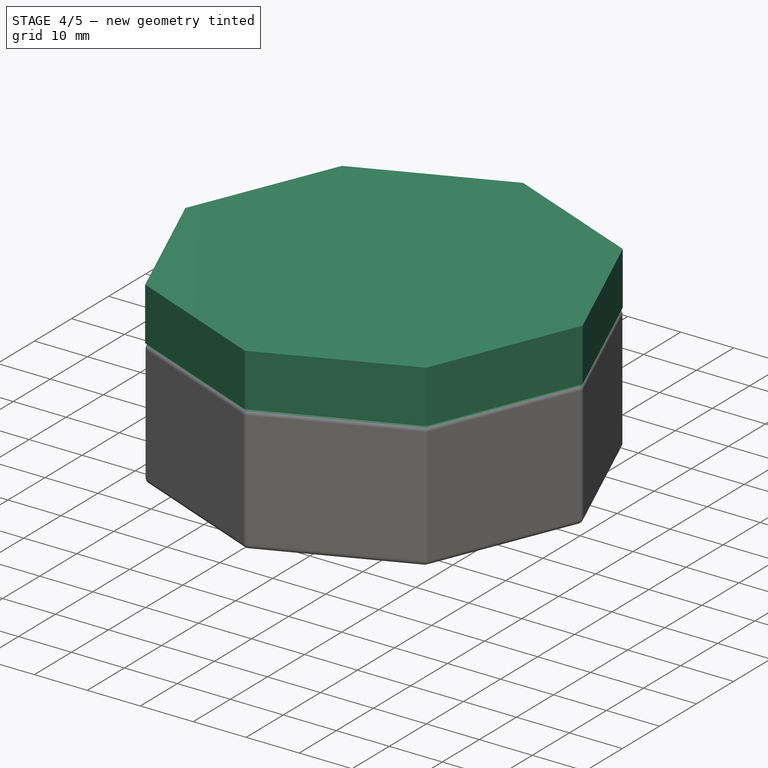
[diagram: stage 4 of 5 — iso view after this stage's code; geometry added in this stage tinted green]
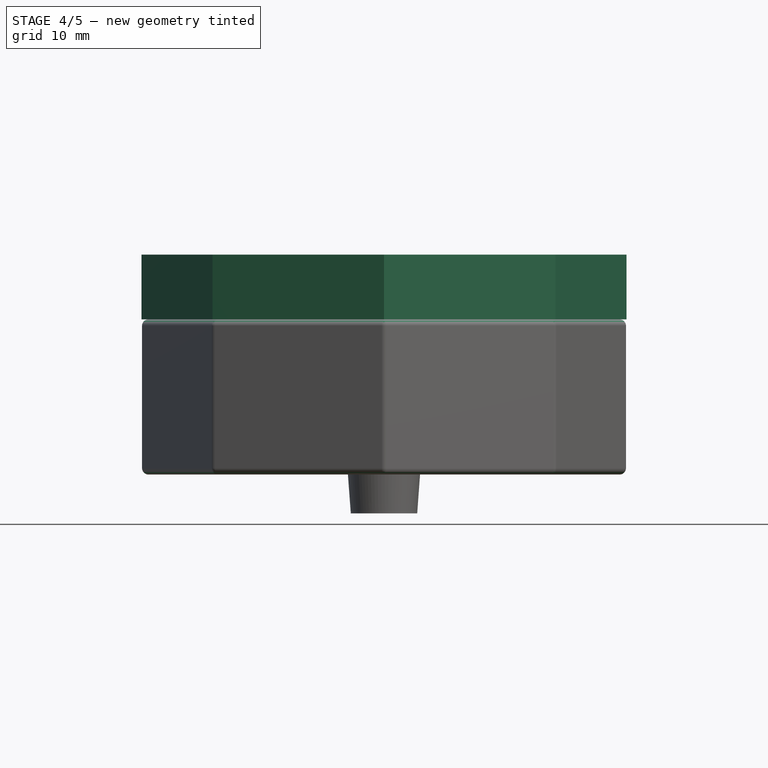
[diagram: stage 4 of 5 — front view after this stage's code; geometry added in this stage tinted green]
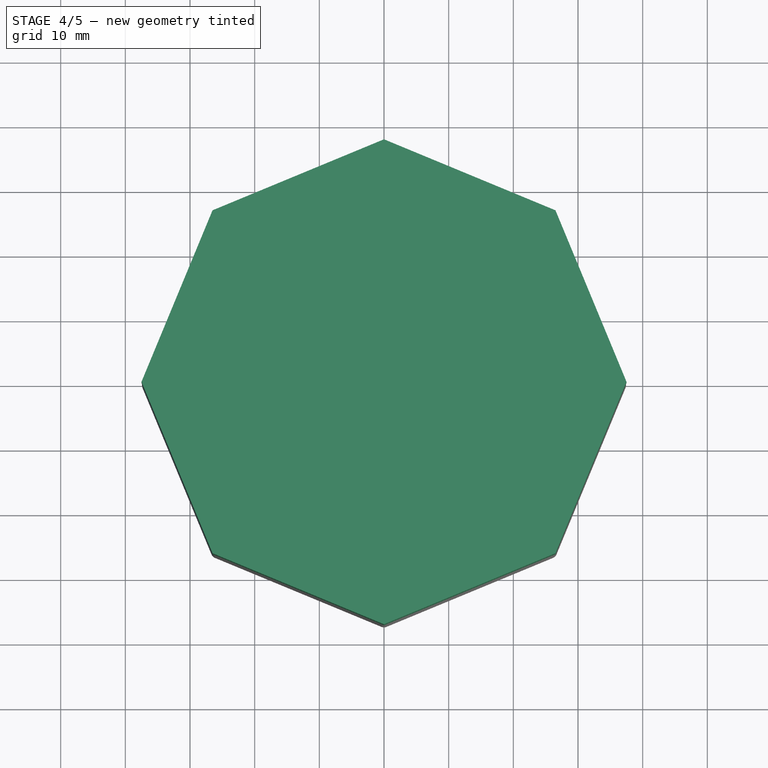
[diagram: stage 4 of 5 — top view after this stage's code; geometry added in this stage tinted green]
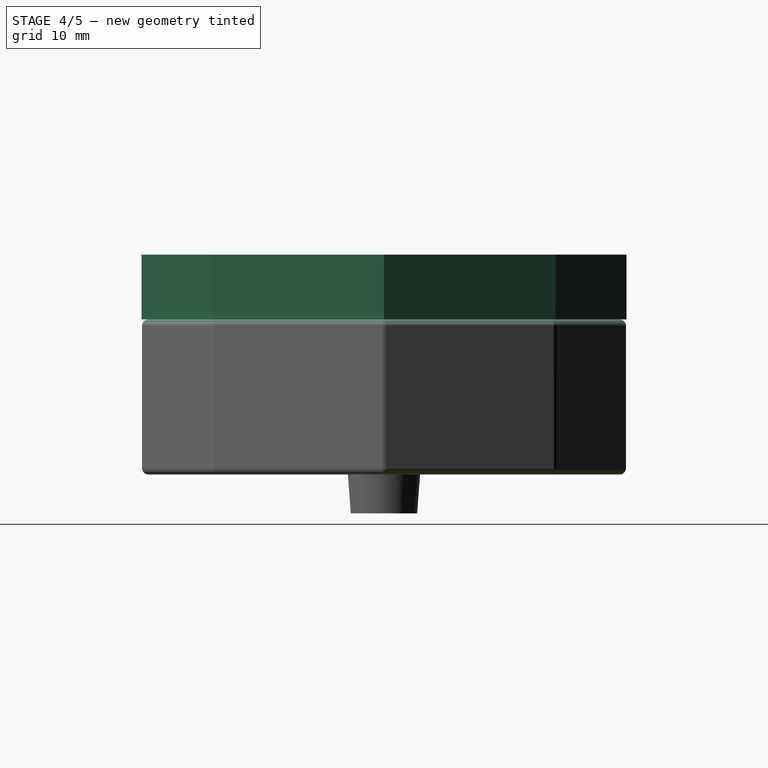
[diagram: stage 4 of 5 — right view after this stage's code; geometry added in this stage tinted green]
FEATURE [Spreadsheet::Sheet] Spreadsheet  label="Parameters"
  PythonMode = false
  ShowCells = 0
  TreeRank = 11
  cells = A1=Overall Diameter; B1(Diameter)=75; D1=Threaded Hole Height; E1(Threaded_Height)=10; A2=Top Height (Exposed); B2(Top_Height)=10; D2=Thread Height; E2(Thread_Height)=2.25; A3=Bottom Height; B3(Bottom_Height)==Overlap + 2 * Wall_Thickness; D3=Thread Pitch; E3(Thread_Pitch)=5; A4=Top/Bottom Overlap; B4(Overlap)=10; D4=Cone Side Angle; E4(Cone_Angle)=8.5; A5=Top Overlap Outer Diameter; B5(Top_Overlap_Outer_Diameter)==(Diameter / 2 * cos(22.5) - Wall_Thickness) * 2; D5=Cone Collection Height; E5(Cone_Collection_Height)=15; A6=Top Top Thickness; B6(Top_Thickness)==Wall_Thickness * 2; D6=Cone Insert Length; E6(Cone_Insert_Height)=15; A7=Wall Thickness; B7(Wall_Thickness)=2; A8=Center Post Diameter; B8(Post_Diameter)=10; A9=Tooth Thickness; B9(Tooth_Thickness)==(Top_Overlap_Outer_Diameter / 2 - Wall_Thickness - Post_Diameter / 2) / 6; A10=Tooth Spacing; B10(Tooth_Spacing)=0.2; A11=Spice Hole Diameter; B11(Hole_Diameter)=5; A13=Top Outer Ring Max; B13(Top_Outer_Diameter_Max_Calculated)==Top_Overlap_Outer_Diameter - 2 * Wall_Thickness; C13(Top_Outer_Diameter_Max)==Top_Outer_Diameter_Max_Calculated + 0.1; D13=Bottom Outer Ring Max; E13(Bottom_Outer_Diameter_Max_Calculated)==Top_Outer_Diameter_Min_Calculated; F13(Bottom_Outer_Diameter_Max)==Bottom_Outer_Diameter_Max_Calculated - Tooth_Spacing; A14=Top Outer Ring Min; B14(Top_Outer_Diameter_Min_Calculated)==Top_Outer_Diameter_Max_Calculated - 2 * Tooth_Thickness; C14(Top_Outer_Diameter_Min)==Top_Outer_Diameter_Min_Calculated - Tooth_Spacing; D14=Bottom Outer Ring Min; E14(Bottom_Outer_Diameter_Min_Calculated)==Top_Middle_Diameter_Max_Calculated; F14(Bottom_Outer_Diameter_Min)==Bottom_Outer_Diameter_Min_Calculated + Tooth_Spacing; A15=Top Middle Ring Max; B15(Top_Middle_Diameter_Max_Calculated)==Top_Outer_Diameter_Min_Calculated - 2 * Tooth_Thickness; C15(Top_Middle_Diameter_Max)==Top_Middle_Diameter_Max_Calculated - Tooth_Spacing; D15=Bottom Middle Ring Max; E15(Bottom_Middle_Diameter_Max_Calculated)==Top_Middle_Diameter_Min_Calculated; F15(Bottom_Middle_Diameter_Max)==Bottom_Middle_Diameter_Max_Calculated - Tooth_Spacing; A16=Top Middle Ring Min; B16(Top_Middle_Diameter_Min_Calculated)==Top_Middle_Diameter_Max_Calculated - 2 * Tooth_Thickness; C16(Top_Middle_Diameter_Min)==Top_Middle_Diameter_Min_Calculated + Tooth_Spacing; D16=Bottom Middle Ring Min; E16(Bottom_Middle_Diameter_Min_Calculated)==Top_Inner_Diameter_Max_Calculated; F16(Bottom_Middle_Diameter_Min)==Bottom_Middle_Diameter_Min_Calculated + Tooth_Spacing; A17=Top Inner Ring Max; B17(Top_Inner_Diameter_Max_Calculated)==Top_Middle_Diameter_Min_Calculated - 2 * Tooth_Thickness; C17(Top_Inner_Diameter_Max)==Top_Inner_Diameter_Max_Calculated - Tooth_Spacing; D17=Bottom Inner Ring Max; E17(Bottom_Inner_Diameter_Max_Calculated)==Top_Inner_Diameter_Min_Calculated; F17(Bottom_Inner_Diameter_Max)==Bottom_Inner_Diameter_Max_Calculated - Tooth_Spacing; A18=Top Inner Ring Min; B18(Top_Inner_Diameter_Min_Calculated)==Top_Inner_Diameter_Max_Calculated - 2 * Tooth_Thickness; C18(Top_Inner_Diameter_Min)==Top_Inner_Diameter_Min_Calculated + Tooth_Spacing; D18=Bottom Inner Ring Min; E18(Bottom_Inner_Diameter_Min_Calculated)==Bottom_Inner_Diameter_Max_Calculated - 2 * Tooth_Thickness; F18(Bottom_Inner_Diameter_Min)==Bottom_Inner_Diameter_Min_Calculated - 0.1
FEATURE [Sketcher::SketchObject] Sketch
  ArcFitTolerance = 1e-06
  AttachmentSupport = -> [XY_Plane]
  ExternalBSplineMaxDegree = 5
  ExternalBSplineTolerance = 0.0001
  FullyConstrained = true
  InternalTolerance = 1e-06
  InvalidShape = false
  MakeInternals = false
  MapMode = 5
  Support = -> [XY_Plane]
  TreeRank = 22
  ValidateShape = true
  expr: Constraints[25] = <<Parameters>>.Diameter
  sketch-geometry (9):
    g0: LineSegment StartX=0 StartY=37.5 StartZ=0 EndX=-26.5165 EndY=26.5165 EndZ=0
    g1: LineSegment StartX=-26.5165 StartY=26.5165 StartZ=0 EndX=-37.5 EndY=1.7089e-12 EndZ=0
    g2: LineSegment StartX=-37.5 StartY=1.7105e-12 StartZ=0 EndX=-26.5165 EndY=-26.5165 EndZ=0
    g3: LineSegment StartX=-26.5165 StartY=-26.5165 StartZ=0 EndX=-3.4213e-12 EndY=-37.5 EndZ=0
    g4: LineSegment StartX=-3.4221e-12 StartY=-37.5 StartZ=0 EndX=26.5165 EndY=-26.5165 EndZ=0
    g5: LineSegment StartX=26.5165 StartY=-26.5165 StartZ=0 EndX=37.5 EndY=-5.1266e-12 EndZ=0
    g6: LineSegment StartX=37.5 StartY=-5.1277e-12 StartZ=0 EndX=26.5165 EndY=26.5165 EndZ=0
    g7: LineSegment StartX=26.5165 StartY=26.5165 StartZ=0 EndX=0 EndY=37.5 EndZ=0
    g8: Circle [constr] CenterX=0 CenterY=0 CenterZ=0 NormalX=0 NormalY=0 NormalZ=1 AngleXU=0 Radius=37.5
  constraints (20):
    c: Coincident(g0,g1)
    c: Coincident(g1,g2)
    c: Coincident(g2,g3)
    c: Coincident(g3,g4)
    c: Coincident(g4,g5)
    c: Coincident(g5,g6)
    c: Coincident(g6,g7)
    c: Coincident(g7,g0)
    c: Equal(g0, g1-g7) x7
    c: PointOnObject(g0,g8)
    c: PointOnObject(g1,g8)
    c: PointOnObject(g2,g8)
    c: PointOnObject(g3,g8)
    c: PointOnObject(g4,g8)
    c: PointOnObject(g5,g8)
    c: PointOnObject(g6,g8)
    c: PointOnObject(g7,g8)
    c: Coincident(g8,g-1)
    c: PointOnObject(g7,g-2)
    c: Diameter(g8) = 75
FEATURE [PartDesign::Pad] Pad  label="Top Handle"
  AddSubType = 0
  AlongSketchNormal = false
  AutoTaperInnerAngle = true
  CheckUpToFaceLimits = true
  ClaimChildren = false
  Direction = (0,0,1)
  Fit = 0
  FitJoin = 0
  InnerFit = 0
  InnerFitJoin = 0
  InvalidShape = false
  Length = 10
  Length2 = 100
  Linearize = true
  NewSolid = false
  Profile = -> Sketch
  Suppress = false
  TaperInnerAngle = 0
  TaperInnerAngleRev = 0
  TreeRank = 23
  Type = 0
  ValidateShape = true
  _ProfileBasedVersion = 1
  expr: Length = <<Parameters>>.Top_Height
FEATURE [Sketcher::SketchObject] Sketch001
  ArcFitTolerance = 1e-06
  AttachmentSupport = -> [Pad]
  ExternalBSplineMaxDegree = 5
  ExternalBSplineTolerance = 0.0001
  FullyConstrained = true
  InternalTolerance = 1e-06
  InvalidShape = false
  MakeInternals = false
  MapMode = 5
  Placement = pos=(0,0,0) rot=(1,0,0;3.14159rad)
  Support = -> [Pad]
  TreeRank = 24
  ValidateShape = true
  expr: Constraints[1] = <<Parameters>>.Top_Overlap_Outer_Diameter
  sketch-geometry (1):
    g0: Circle CenterX=0 CenterY=0 CenterZ=0 NormalX=0 NormalY=0 NormalZ=1 AngleXU=0 Radius=32.6455
  constraints (2):
    c: Coincident(g0,g-1)
    c: Diameter(g0) = 65.291
FEATURE [PartDesign::Pad] Pad001  label="Top Overlap"
  AddSubType = 0
  AlongSketchNormal = false
  AutoTaperInnerAngle = true
  BaseFeature = -> Pad
  CheckUpToFaceLimits = true
  ClaimChildren = false
  Direction = (0,0,-1)
  Fit = 0
  FitJoin = 0
  InnerFit = 0
  InnerFitJoin = 0
  InvalidShape = false
  Length = 10
  Length2 = 100
  Linearize = true
  NewSolid = false
  Profile = -> Sketch001
  Suppress = false
  TaperInnerAngle = 0
  TaperInnerAngleRev = 0
  TreeRank = 25
  Type = 0
  ValidateShape = true
  _ProfileBasedVersion = 1
  expr: Length = <<Parameters>>.Overlap
FEATURE [Sketcher::SketchObject] Sketch002
  ArcFitTolerance = 1e-06
  AttachmentSupport = -> [Pad001]
  ExternalBSplineMaxDegree = 5
  ExternalBSplineTolerance = 0.0001
  FullyConstrained = true
  InternalTolerance = 1e-06
  InvalidShape = false
  MakeInternals = false
  MapMode = 5
  Placement = pos=(0,0,-10) rot=(1,0,0;3.14159rad)
  Support = -> [Pad001]
  TreeRank = 26
  ValidateShape = true
  expr: Constraints[1] = <<Parameters>>.Top_Overlap_Outer_Diameter - 2 * <<Parameters>>.Wall_Thickness
  sketch-geometry (1):
    g0: Circle CenterX=0 CenterY=0 CenterZ=0 NormalX=0 NormalY=0 NormalZ=1 AngleXU=0 Radius=30.6455
  constraints (2):
    c: Coincident(g0,g-1)
    c: Diameter(g0) = 61.291
FEATURE [PartDesign::Pocket] Pocket  label="Top Hollow"
  AddSubType = 1
  AutoTaperInnerAngle = true
  BaseFeature = -> Pad001
  CheckUpToFaceLimits = true
  ClaimChildren = false
  Fit = 0
  FitJoin = 0
  InnerFit = 0
  InnerFitJoin = 0
  InvalidShape = false
  Length = 16
  Length2 = 100
  Linearize = true
  NewSolid = false
  Profile = -> Sketch002
  Suppress = false
  TaperInnerAngle = 0
  TaperInnerAngleRev = 0
  TreeRank = 27
  Type = 0
  ValidateShape = true
  _ProfileBasedVersion = 1
  _Version = 1
  expr: Length = <<Parameters>>.Top_Height + <<Parameters>>.Overlap - Spreadsheet.Top_Thickness
FEATURE [Sketcher::SketchObject] Sketch003
  ArcFitTolerance = 1e-06
  AttachmentSupport = -> [Pocket]
  ExternalBSplineMaxDegree = 5
  ExternalBSplineTolerance = 0.0001
  FullyConstrained = true
  InternalTolerance = 1e-06
  InvalidShape = false
  MakeInternals = false
  MapMode = 5
  Placement = pos=(0,0,6) rot=(1,0,0;3.14159rad)
  Support = -> [Pocket]
  TreeRank = 28
  ValidateShape = true
  expr: Constraints[0] = Spreadsheet.Top_Outer_Diameter_Max
  expr: Constraints[1] = Spreadsheet.Top_Outer_Diameter_Min
  sketch-geometry (4):
    g0: ArcOfCircle CenterX=0 CenterY=0 CenterZ=0 NormalX=0 NormalY=0 NormalZ=1 AngleXU=0 Radius=26.2712 StartAngle=1.48389 EndAngle=1.6577
    g1: ArcOfCircle CenterX=0 CenterY=0 CenterZ=0 NormalX=0 NormalY=0 NormalZ=1 AngleXU=0 Radius=30.6955 StartAngle=1.48109 EndAngle=1.66051
    g2: ArcOfCircle CenterX=6 CenterY=28 CenterZ=0 NormalX=0 NormalY=0 NormalZ=1 AngleXU=0 Radius=4.14463 StartAngle=2.47212 EndAngle=3.59834
    g3: ArcOfCircle CenterX=-6 CenterY=28 CenterZ=0 NormalX=0 NormalY=0 NormalZ=1 AngleXU=0 Radius=4.14463 StartAngle=5.82644 EndAngle=6.95266
  constraints (14):
    c: Diameter(g1) = 61.391
    c: Diameter(g0) = 52.5425
    c: Coincident(g0,g-1)
    c: Coincident(g1,g0)
    c: Coincident(g2,g1)
    c: Coincident(g2,g0)
    c: Coincident(g3,g0)
    c: Coincident(g3,g1)
    c: DistanceX(g0,g2) = 6
    c: DistanceX(g3,g0) = 6
    c: DistanceY(g0,g2) = 28
    c: DistanceY(g0,g3) = 28
    c: DistanceX(g0,g1) = 2.75
    c: DistanceX(g1,g0) = 2.75
FEATURE [PartDesign::Pad] Pad002  label="Top Outer Tooth Profile"
  AddSubType = 0
  AlongSketchNormal = false
  AutoTaperInnerAngle = true
  BaseFeature = -> Pocket
  CheckUpToFaceLimits = true
  ClaimChildren = false
  Direction = (0,0,-1)
  Fit = 0
  FitJoin = 0
  InnerFit = 0
  InnerFitJoin = 0
  InvalidShape = false
  Length = 16
  Length2 = 100
  Linearize = true
  NewSolid = false
  Profile = -> Sketch003
  Suppress = false
  TaperInnerAngle = 0
  TaperInnerAngleRev = 0
  TreeRank = 29
  Type = 0
  ValidateShape = true
  _ProfileBasedVersion = 1
  expr: Length = <<Parameters>>.Top_Height + <<Parameters>>.Overlap - <<Parameters>>.Top_Thickness
FEATURE [PartDesign::PolarPattern] PolarPattern  label="Top Outer Tooth Ring"
  AddSubType = 0
  Angle = 360
  Axis = -> Sketch003 [N_Axis]
  BaseFeature = -> Pad002
  CopyShape = false
  InvalidShape = false
  NewSolid = false
  Occurrences = 11
  OriginalSubs = -> [Pad002]
  Originals = -> [Pad002]
  ParallelTransform = true
  SubTransform = true
  Suppress = false
  TreeRank = 30
  ValidateShape = true
  _Version = 3
FEATURE [PartDesign::Fillet] Fillet002
  AddSubType = 0
  Base = -> Helix001 [Edge9,Edge3,Edge6,Edge15,Edge14,Edge13,Edge12,Edge11,Edge2,Edge1,Edge5,Edge8,Edge24,Edge25,Edge26,Edge23,Edge19,Edge20,Edge18,Edge21,Edge17,Edge10,Edge4,Edge7]
  BaseFeature = -> Helix001
  InvalidShape = false
  NewSolid = false
  Radius = 1
  SupportTransform = false
  Suppress = false
  TreeRank = 105
  ValidateShape = true
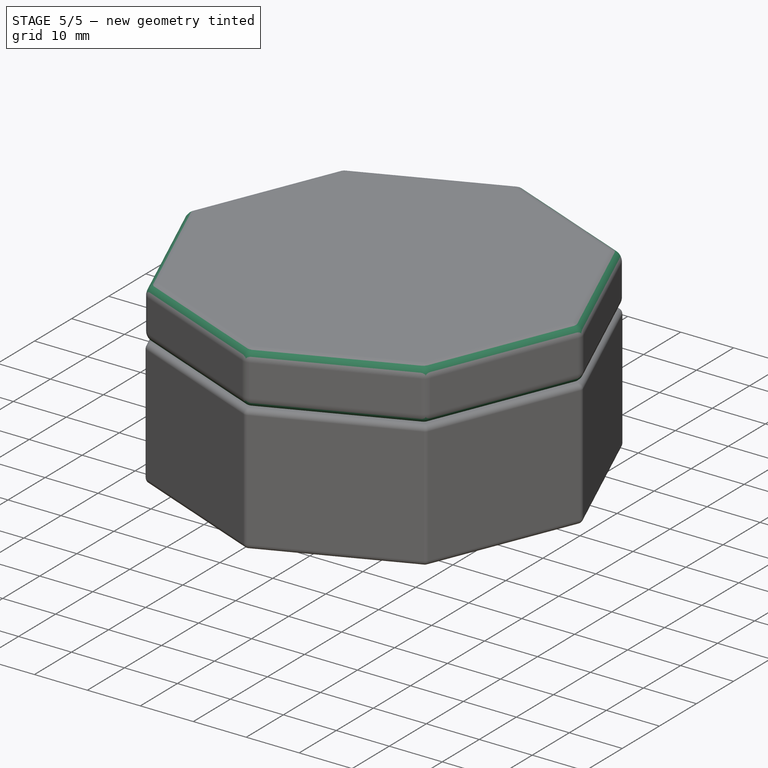
[diagram: stage 5 of 5 — iso view after this stage's code; geometry added in this stage tinted green]
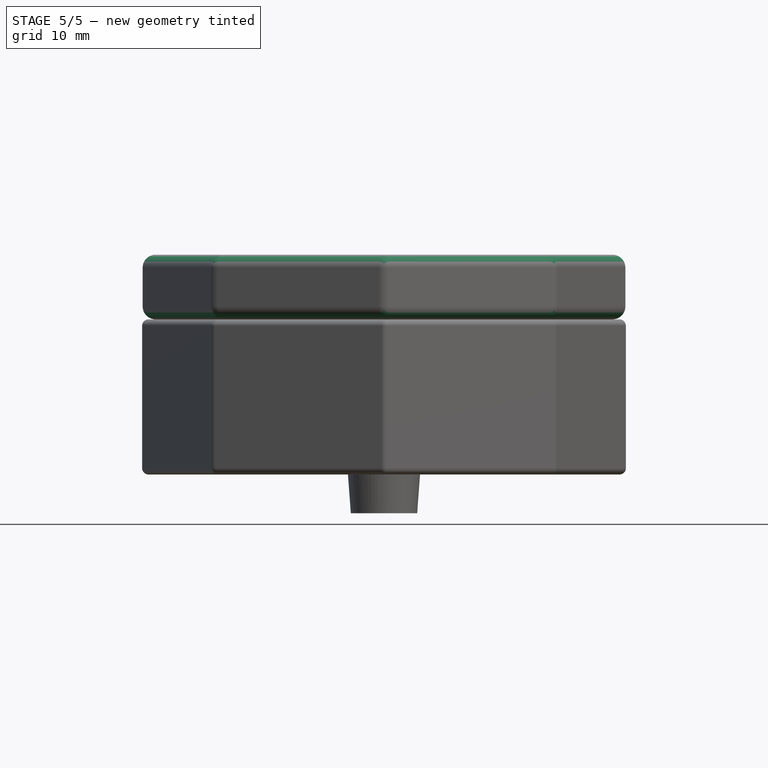
[diagram: stage 5 of 5 — front view after this stage's code; geometry added in this stage tinted green]
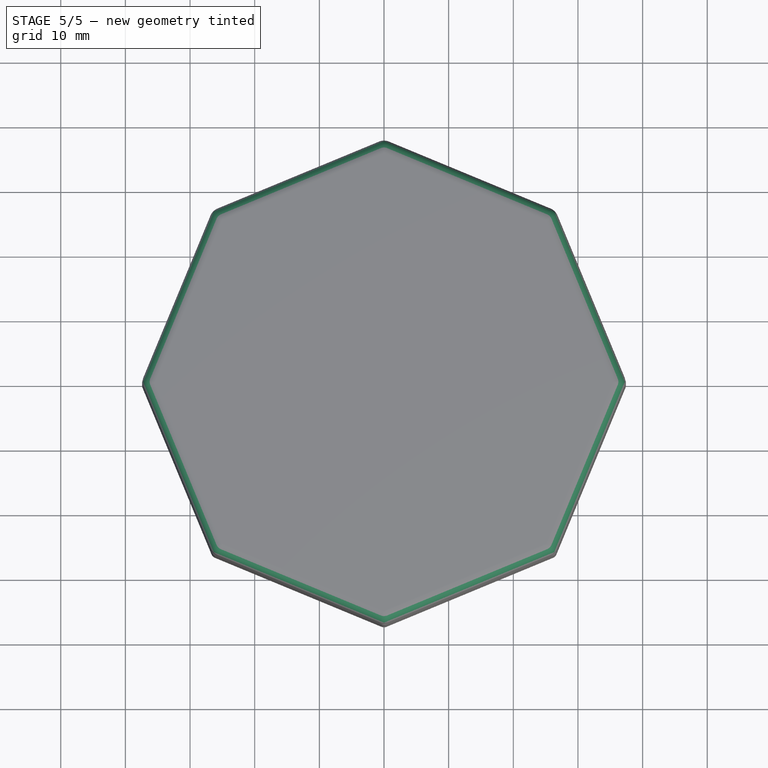
[diagram: stage 5 of 5 — top view after this stage's code; geometry added in this stage tinted green]
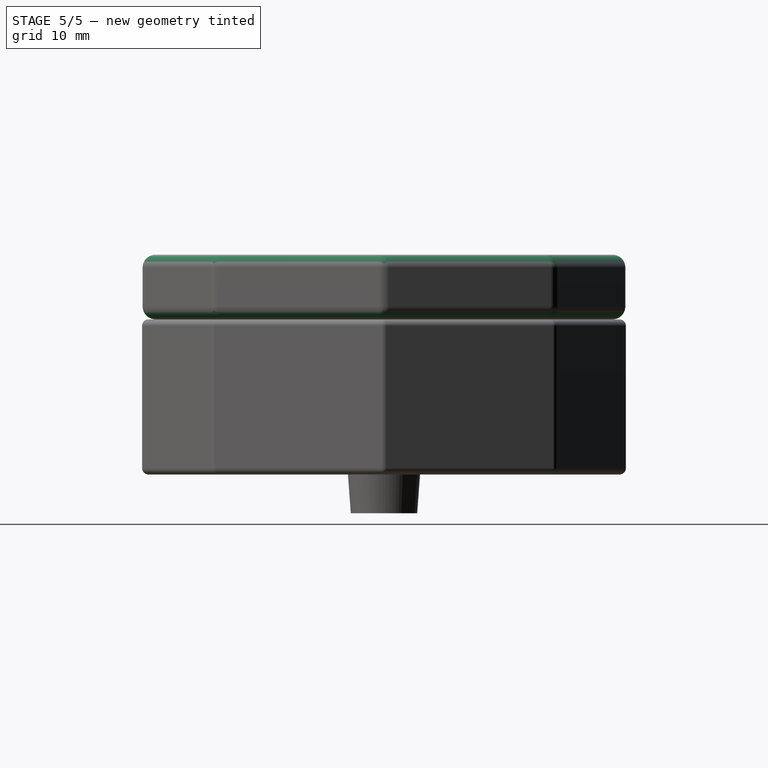
[diagram: stage 5 of 5 — right view after this stage's code; geometry added in this stage tinted green]
FEATURE [Sketcher::SketchObject] Sketch004
  ArcFitTolerance = 1e-06
  AttachmentSupport = -> [PolarPattern]
  ExternalBSplineMaxDegree = 5
  ExternalBSplineTolerance = 0.0001
  FullyConstrained = false
  InternalTolerance = 1e-06
  InvalidShape = false
  MakeInternals = false
  MapMode = 5
  Placement = pos=(0,0,6) rot=(1,0,0;3.14159rad)
  Support = -> [PolarPattern]
  TreeRank = 31
  ValidateShape = true
  expr: Constraints[2] = <<Parameters>>.Top_Middle_Diameter_Max
  expr: Constraints[3] = <<Parameters>>.Top_Middle_Diameter_Min
  sketch-geometry (4):
    g0: ArcOfCircle CenterX=0 CenterY=0 CenterZ=0 NormalX=0 NormalY=0 NormalZ=1 AngleXU=0 Radius=21.997 StartAngle=1.09142 EndAngle=1.30249
    g1: ArcOfCircle CenterX=0 CenterY=0 CenterZ=0 NormalX=0 NormalY=0 NormalZ=1 AngleXU=0 Radius=17.9227 StartAngle=1.08331 EndAngle=1.303
    g2: ArcOfCircle CenterX=2.31395 CenterY=20.0714 CenterZ=0 NormalX=0 NormalY=0 NormalZ=1 AngleXU=0 Radius=3.6971 StartAngle=5.42908 EndAngle=6.59622
    g3: ArcOfCircle CenterX=11.4599 CenterY=16.6356 CenterZ=0 NormalX=0 NormalY=0 NormalZ=1 AngleXU=0 Radius=3.16754 StartAngle=1.99866 EndAngle=3.39712
  constraints (8):
    c: Coincident(g0,g-1)
    c: Coincident(g1,g0)
    c: Diameter(g0) = 43.994
    c: Diameter(g1) = 35.8455
    c: Coincident(g2,g0)
    c: Coincident(g2,g1)
    c: Coincident(g3,g0)
    c: Coincident(g3,g1)
FEATURE [PartDesign::Pad] Pad003  label="Top Middle Tooth Profile"
  AddSubType = 0
  AlongSketchNormal = false
  AutoTaperInnerAngle = true
  BaseFeature = -> PolarPattern
  CheckUpToFaceLimits = true
  ClaimChildren = false
  Direction = (0,0,-1)
  Fit = 0
  FitJoin = 0
  InnerFit = 0
  InnerFitJoin = 0
  InvalidShape = false
  Length = 16
  Length2 = 100
  Linearize = true
  NewSolid = false
  Profile = -> Sketch004
  Suppress = false
  TaperInnerAngle = 0
  TaperInnerAngleRev = 0
  TreeRank = 32
  Type = 0
  ValidateShape = true
  _ProfileBasedVersion = 1
  expr: Length = <<Parameters>>.Top_Height + <<Parameters>>.Overlap - <<Parameters>>.Top_Thickness
FEATURE [PartDesign::PolarPattern] PolarPattern001  label="Top Middle Tooth Ring"
  AddSubType = 0
  Angle = 360
  Axis = -> Sketch004 [N_Axis]
  BaseFeature = -> Pad003
  CopyShape = false
  InvalidShape = false
  NewSolid = false
  Occurrences = 8
  OriginalSubs = -> [Pad003]
  Originals = -> [Pad003]
  ParallelTransform = true
  SubTransform = true
  Suppress = false
  TreeRank = 33
  ValidateShape = true
  _Version = 3
FEATURE [Sketcher::SketchObject] Sketch005
  ArcFitTolerance = 1e-06
  AttachmentSupport = -> [PolarPattern001]
  ExternalBSplineMaxDegree = 5
  ExternalBSplineTolerance = 0.0001
  FullyConstrained = false
  InternalTolerance = 1e-06
  InvalidShape = false
  MakeInternals = false
  MapMode = 5
  Placement = pos=(0,0,6) rot=(1,0,0;3.14159rad)
  Support = -> [PolarPattern001]
  TreeRank = 34
  ValidateShape = true
  expr: Constraints[2] = <<Parameters>>.Top_Inner_Diameter_Max
  expr: Constraints[3] = <<Parameters>>.Top_Inner_Diameter_Min
  sketch-geometry (4):
    g0: ArcOfCircle CenterX=0 CenterY=0 CenterZ=0 NormalX=0 NormalY=0 NormalZ=1 AngleXU=0 Radius=13.4485 StartAngle=0.639752 EndAngle=0.844659
    g1: ArcOfCircle CenterX=0 CenterY=0 CenterZ=0 NormalX=0 NormalY=0 NormalZ=1 AngleXU=0 Radius=9.37425 StartAngle=0.623627 EndAngle=0.860508
    g2: ArcOfCircle CenterX=5.08318 CenterY=10.9107 CenterZ=0 NormalX=0 NormalY=0 NormalZ=1 AngleXU=0 Radius=3.94026 StartAngle=4.97669 EndAngle=6.06453
    g3: ArcOfCircle CenterX=11.2641 CenterY=4.18156 CenterZ=0 NormalX=0 NormalY=0 NormalZ=1 AngleXU=0 Radius=3.87638 StartAngle=1.69368 EndAngle=2.80156
  constraints (8):
    c: Coincident(g0,g-1)
    c: Coincident(g1,g0)
    c: Diameter(g0) = 26.897
    c: Diameter(g1) = 18.7485
    c: Coincident(g2,g0)
    c: Coincident(g2,g1)
    c: Coincident(g3,g0)
    c: Coincident(g3,g1)
FEATURE [PartDesign::Pad] Pad004  label="Top Inner Tooth Profile"
  AddSubType = 0
  AlongSketchNormal = false
  AutoTaperInnerAngle = true
  BaseFeature = -> PolarPattern001
  CheckUpToFaceLimits = true
  ClaimChildren = false
  Direction = (0,0,-1)
  Fit = 0
  FitJoin = 0
  InnerFit = 0
  InnerFitJoin = 0
  InvalidShape = false
  Length = 16
  Length2 = 100
  Linearize = true
  NewSolid = false
  Profile = -> Sketch005
  Suppress = false
  TaperInnerAngle = 0
  TaperInnerAngleRev = 0
  TreeRank = 35
  Type = 0
  ValidateShape = true
  _ProfileBasedVersion = 1
  expr: Length = <<Parameters>>.Top_Height + <<Parameters>>.Overlap - <<Parameters>>.Top_Thickness
FEATURE [PartDesign::PolarPattern] PolarPattern002
  AddSubType = 0
  Angle = 360
  Axis = -> Sketch005 [N_Axis]
  BaseFeature = -> Pad004
  CopyShape = false
  InvalidShape = false
  NewSolid = false
  Occurrences = 5
  OriginalSubs = -> [Pad004]
  Originals = -> [Pad004]
  ParallelTransform = true
  SubTransform = true
  Suppress = false
  TreeRank = 36
  ValidateShape = true
  _Version = 3
FEATURE [PartDesign::Fillet] Fillet
  AddSubType = 0
  Base = -> PolarPattern002 [Face5,Face6,Face8,Face2,Face1,Face3,Face7,Face9,Face10]
  BaseFeature = -> PolarPattern002
  InvalidShape = false
  NewSolid = false
  Radius = 2
  SupportTransform = false
  Suppress = false
  TreeRank = 37
  ValidateShape = true
FEATURE [PartDesign::Fillet] Fillet001
  AddSubType = 0
  Base = -> Fillet [Edge103]
  BaseFeature = -> Fillet
  InvalidShape = false
  NewSolid = false
  Radius = 0.5
  SupportTransform = false
  Suppress = false
  TreeRank = 38
  ValidateShape = true
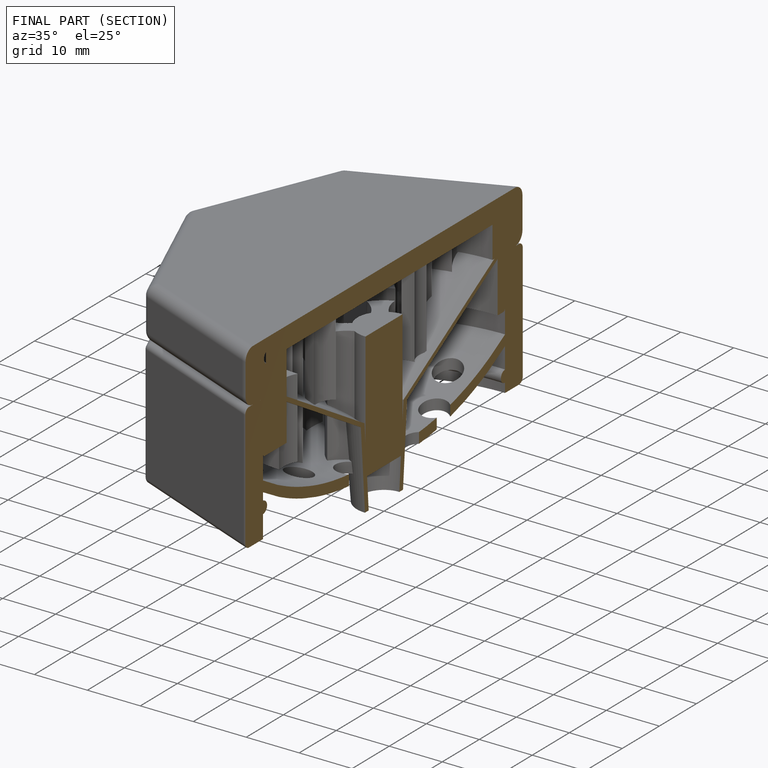
[diagram: finished part — half-section view (interior)]
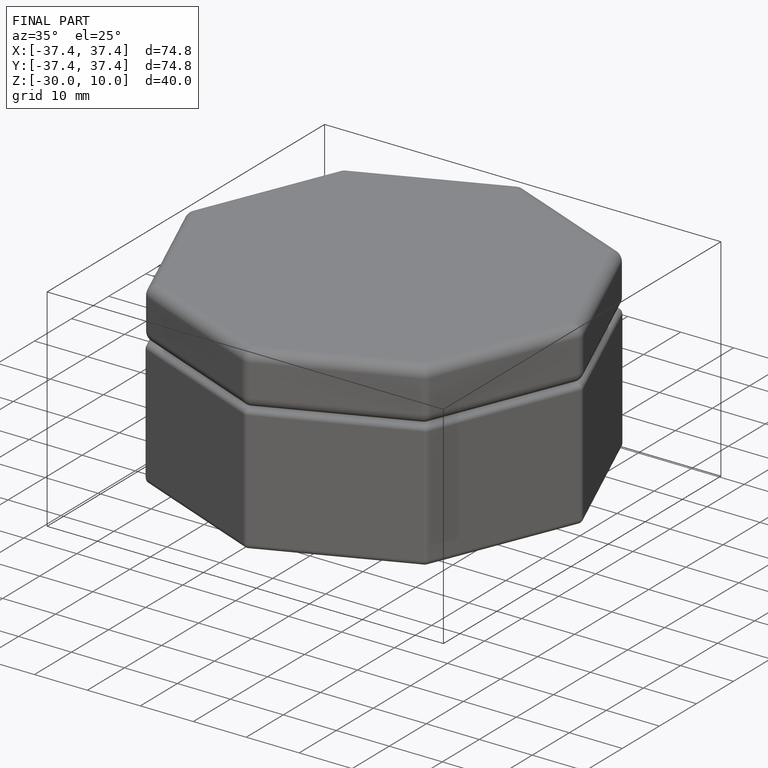
[diagram: finished part — iso view with bounding-box wireframe]
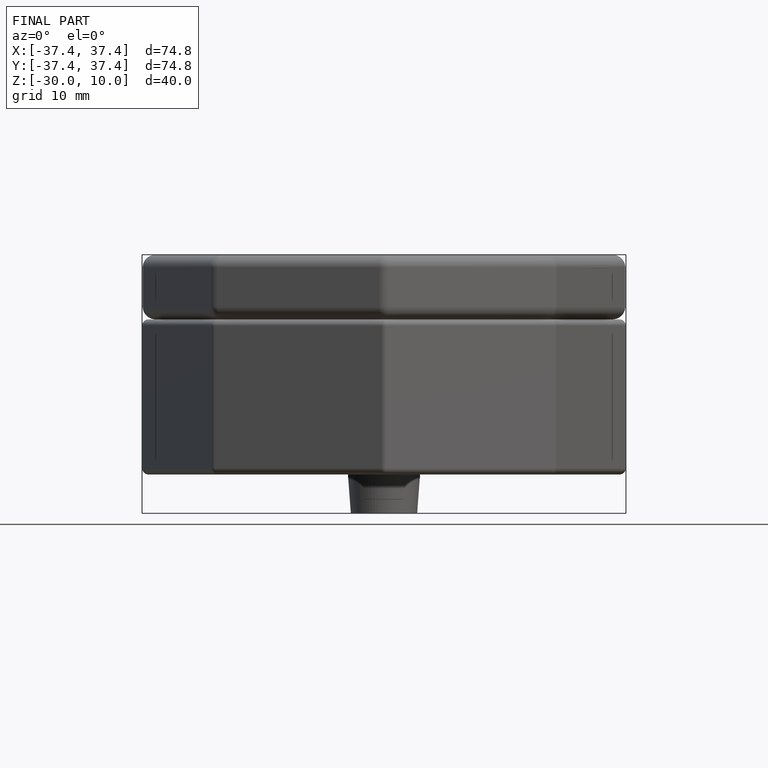
[diagram: finished part — front view with bounding-box wireframe]
